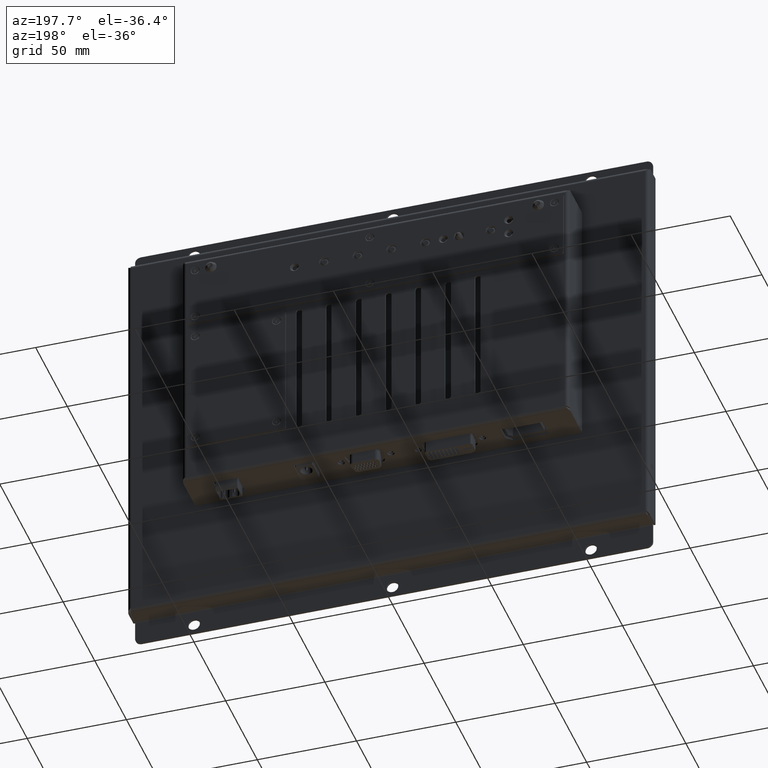
[diagram: clean part render]
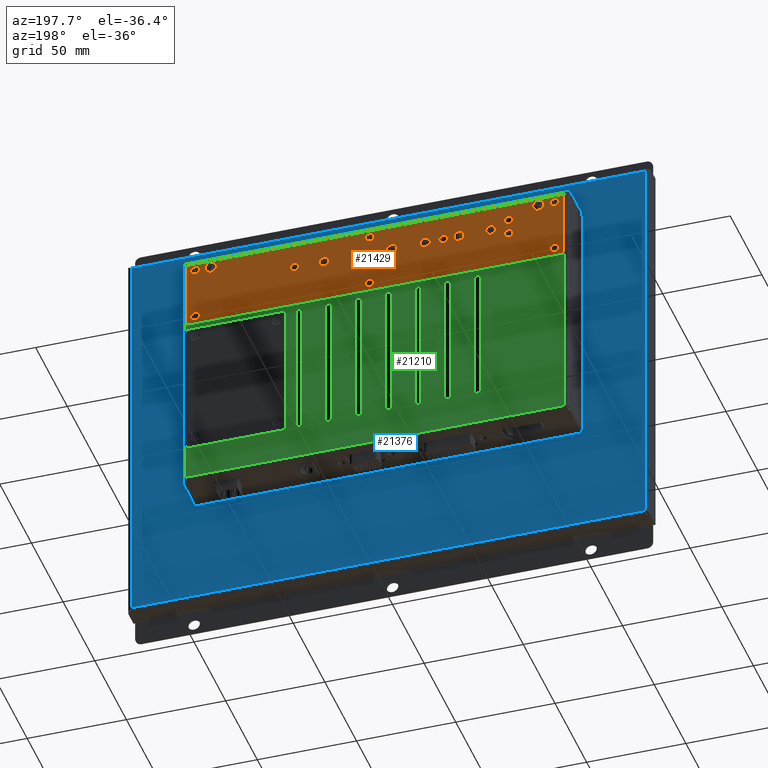
[diagram: same view with three faces highlighted in distinct colors, each labeled with its STEP entity id]
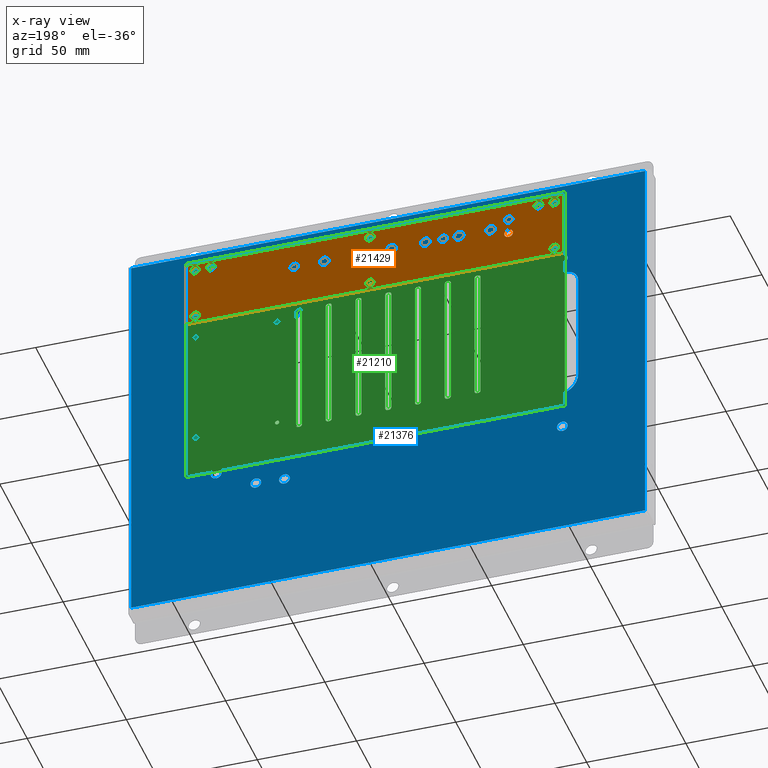
[diagram: x-ray of the same camera — body ghosted, the three highlighted faces saturated]
A machine part, auxiliary view with three faces highlighted in distinct colors.
The next image is the same camera in x-ray (body ghosted, the three faces saturated) — at least one of them is partly hidden behind the body in this view.
Their STEP definitions:

[orange] entity #21429 — the highlighted planar face has unit normal (-0, 1, -0).
#1054=FACE_BOUND('',#7914,.T.);
#1055=FACE_BOUND('',#7915,.T.);
#1056=FACE_BOUND('',#7916,.T.);
#1057=FACE_BOUND('',#7917,.T.);
#1058=FACE_BOUND('',#7918,.T.);
#1059=FACE_BOUND('',#7919,.T.);
#1060=FACE_BOUND('',#7920,.T.);
#1061=FACE_BOUND('',#7921,.T.);
#1062=FACE_BOUND('',#7922,.T.);
#1063=FACE_BOUND('',#7923,.T.);
#1064=FACE_BOUND('',#7924,.T.);
#1065=FACE_BOUND('',#7925,.T.);
#1066=FACE_BOUND('',#7926,.T.);
#1067=FACE_BOUND('',#7927,.T.);
#1068=FACE_BOUND('',#7928,.T.);
#1069=FACE_BOUND('',#7929,.T.);
#1070=FACE_BOUND('',#7930,.T.);
#1071=FACE_BOUND('',#7931,.T.);
#1648=PLANE('',#23647);
#3319=LINE('',#38420,#5074);
#3323=LINE('',#38432,#5078);
#3327=LINE('',#38444,#5082);
#3331=LINE('',#38455,#5086);
#5074=VECTOR('',#28872,10.);
#5078=VECTOR('',#28884,10.);
#5082=VECTOR('',#28896,10.);
#5086=VECTOR('',#28908,10.);
#6509=FACE_OUTER_BOUND('',#7913,.T.);
#7913=EDGE_LOOP('',(#19227,#19228,#19229,#19230,#19231,#19232,#19233,#19234));
#7914=EDGE_LOOP('',(#19235,#19236));
#7915=EDGE_LOOP('',(#19237,#19238));
#7916=EDGE_LOOP('',(#19239,#19240));
#7917=EDGE_LOOP('',(#19241,#19242));
#7918=EDGE_LOOP('',(#19243,#19244));
#7919=EDGE_LOOP('',(#19245,#19246));
#7920=EDGE_LOOP('',(#19247,#19248));
#7921=EDGE_LOOP('',(#19249,#19250));
#7922=EDGE_LOOP('',(#19251,#19252));
#7923=EDGE_LOOP('',(#19253,#19254));
#7924=EDGE_LOOP('',(#19255));
#7925=EDGE_LOOP('',(#19256));
#7926=EDGE_LOOP('',(#19257));
#7927=EDGE_LOOP('',(#19258));
#7928=EDGE_LOOP('',(#19259));
#7929=EDGE_LOOP('',(#19260));
#7930=EDGE_LOOP('',(#19261));
#7931=EDGE_LOOP('',(#19262));
#8806=CIRCLE('',#23568,2.2);
#8807=CIRCLE('',#23569,2.2);
#8809=CIRCLE('',#23572,2.2);
#8810=CIRCLE('',#23573,2.2);
#8812=CIRCLE('',#23576,2.2);
#8813=CIRCLE('',#23577,2.2);
#8815=CIRCLE('',#23580,2.2);
#8816=CIRCLE('',#23581,2.2);
#8818=CIRCLE('',#23584,2.2);
#8819=CIRCLE('',#23585,2.2);
#8821=CIRCLE('',#23588,2.2);
#8822=CIRCLE('',#23589,2.2);
#8824=CIRCLE('',#23592,2.2);
#8825=CIRCLE('',#23593,2.2);
#8827=CIRCLE('',#23596,2.2);
#8828=CIRCLE('',#23597,2.2);
#8830=CIRCLE('',#23600,2.2);
#8831=CIRCLE('',#23601,2.2);
#8833=CIRCLE('',#23604,2.2);
#8834=CIRCLE('',#23605,2.2);
#8837=CIRCLE('',#23609,2.55);
#8839=CIRCLE('',#23612,2.5);
#8841=CIRCLE('',#23615,2.5);
#8843=CIRCLE('',#23618,2.5);
#8845=CIRCLE('',#23621,2.5);
#8847=CIRCLE('',#23624,2.5);
#8849=CIRCLE('',#23627,2.2);
#8851=CIRCLE('',#23630,2.2);
#8852=CIRCLE('',#23632,0.999999252925102);
#8854=CIRCLE('',#23636,0.999999252925095);
#8856=CIRCLE('',#23640,0.999999252925102);
#8858=CIRCLE('',#23644,0.999999252925095);
#10702=VERTEX_POINT('',#38282);
#10703=VERTEX_POINT('',#38283);
#10705=VERTEX_POINT('',#38290);
#10706=VERTEX_POINT('',#38291);
#10708=VERTEX_POINT('',#38298);
#10709=VERTEX_POINT('',#38299);
#10711=VERTEX_POINT('',#38306);
#10712=VERTEX_POINT('',#38307);
#10714=VERTEX_POINT('',#38314);
#10715=VERTEX_POINT('',#38315);
#10717=VERTEX_POINT('',#38322);
#10718=VERTEX_POINT('',#38323);
#10720=VERTEX_POINT('',#38330);
#10721=VERTEX_POINT('',#38331);
#10723=VERTEX_POINT('',#38338);
#10724=VERTEX_POINT('',#38339);
#10726=VERTEX_POINT('',#38346);
#10727=VERTEX_POINT('',#38347);
#10729=VERTEX_POINT('',#38354);
#10730=VERTEX_POINT('',#38355);
#10733=VERTEX_POINT('',#38364);
#10735=VERTEX_POINT('',#38370);
#10737=VERTEX_POINT('',#38376);
#10739=VERTEX_POINT('',#38382);
#10741=VERTEX_POINT('',#38388);
#10743=VERTEX_POINT('',#38394);
#10745=VERTEX_POINT('',#38400);
#10747=VERTEX_POINT('',#38406);
#10748=VERTEX_POINT('',#38410);
#10749=VERTEX_POINT('',#38411);
#10752=VERTEX_POINT('',#38419);
#10754=VERTEX_POINT('',#38425);
#10756=VERTEX_POINT('',#38431);
#10758=VERTEX_POINT('',#38437);
#10760=VERTEX_POINT('',#38443);
#10762=VERTEX_POINT('',#38449);
#13553=EDGE_CURVE('',#10702,#10703,#8806,.T.);
#13554=EDGE_CURVE('',#10703,#10702,#8807,.T.);
#13557=EDGE_CURVE('',#10705,#10706,#8809,.T.);
#13558=EDGE_CURVE('',#10706,#10705,#8810,.T.);
#13561=EDGE_CURVE('',#10708,#10709,#8812,.T.);
#13562=EDGE_CURVE('',#10709,#10708,#8813,.T.);
#13565=EDGE_CURVE('',#10711,#10712,#8815,.T.);
#13566=EDGE_CURVE('',#10712,#10711,#8816,.T.);
#13569=EDGE_CURVE('',#10714,#10715,#8818,.T.);
#13570=EDGE_CURVE('',#10715,#10714,#8819,.T.);
#13573=EDGE_CURVE('',#10717,#10718,#8821,.T.);
#13574=EDGE_CURVE('',#10718,#10717,#8822,.T.);
#13577=EDGE_CURVE('',#10720,#10721,#8824,.T.);
#13578=EDGE_CURVE('',#10721,#10720,#8825,.T.);
#13581=EDGE_CURVE('',#10723,#10724,#8827,.T.);
#13582=EDGE_CURVE('',#10724,#10723,#8828,.T.);
#13585=EDGE_CURVE('',#10726,#10727,#8830,.T.);
#13586=EDGE_CURVE('',#10727,#10726,#8831,.T.);
#13589=EDGE_CURVE('',#10729,#10730,#8833,.T.);
#13590=EDGE_CURVE('',#10730,#10729,#8834,.T.);
#13595=EDGE_CURVE('',#10733,#10733,#8837,.T.);
#13598=EDGE_CURVE('',#10735,#10735,#8839,.T.);
#13601=EDGE_CURVE('',#10737,#10737,#8841,.T.);
#13604=EDGE_CURVE('',#10739,#10739,#8843,.T.);
#13607=EDGE_CURVE('',#10741,#10741,#8845,.T.);
#13610=EDGE_CURVE('',#10743,#10743,#8847,.T.);
#13613=EDGE_CURVE('',#10745,#10745,#8849,.T.);
#13616=EDGE_CURVE('',#10747,#10747,#8851,.T.);
#13617=EDGE_CURVE('',#10748,#10749,#8852,.T.);
#13621=EDGE_CURVE('',#10749,#10752,#3319,.T.);
#13624=EDGE_CURVE('',#10752,#10754,#8854,.T.);
#13627=EDGE_CURVE('',#10754,#10756,#3323,.T.);
#13630=EDGE_CURVE('',#10756,#10758,#8856,.T.);
#13633=EDGE_CURVE('',#10758,#10760,#3327,.T.);
#13636=EDGE_CURVE('',#10760,#10762,#8858,.T.);
#13639=EDGE_CURVE('',#10762,#10748,#3331,.T.);
#19227=ORIENTED_EDGE('',*,*,#13617,.F.);
#19228=ORIENTED_EDGE('',*,*,#13639,.F.);
#19229=ORIENTED_EDGE('',*,*,#13636,.F.);
#19230=ORIENTED_EDGE('',*,*,#13633,.F.);
#19231=ORIENTED_EDGE('',*,*,#13630,.F.);
#19232=ORIENTED_EDGE('',*,*,#13627,.F.);
#19233=ORIENTED_EDGE('',*,*,#13624,.F.);
#19234=ORIENTED_EDGE('',*,*,#13621,.F.);
#19235=ORIENTED_EDGE('',*,*,#13553,.T.);
#19236=ORIENTED_EDGE('',*,*,#13554,.T.);
#19237=ORIENTED_EDGE('',*,*,#13557,.T.);
#19238=ORIENTED_EDGE('',*,*,#13558,.T.);
#19239=ORIENTED_EDGE('',*,*,#13561,.T.);
#19240=ORIENTED_EDGE('',*,*,#13562,.T.);
#19241=ORIENTED_EDGE('',*,*,#13565,.T.);
#19242=ORIENTED_EDGE('',*,*,#13566,.T.);
#19243=ORIENTED_EDGE('',*,*,#13569,.T.);
#19244=ORIENTED_EDGE('',*,*,#13570,.T.);
#19245=ORIENTED_EDGE('',*,*,#13573,.T.);
#19246=ORIENTED_EDGE('',*,*,#13574,.T.);
#19247=ORIENTED_EDGE('',*,*,#13577,.T.);
#19248=ORIENTED_EDGE('',*,*,#13578,.T.);
#19249=ORIENTED_EDGE('',*,*,#13581,.T.);
#19250=ORIENTED_EDGE('',*,*,#13582,.T.);
#19251=ORIENTED_EDGE('',*,*,#13585,.T.);
#19252=ORIENTED_EDGE('',*,*,#13586,.T.);
#19253=ORIENTED_EDGE('',*,*,#13589,.T.);
#19254=ORIENTED_EDGE('',*,*,#13590,.T.);
#19255=ORIENTED_EDGE('',*,*,#13595,.T.);
#19256=ORIENTED_EDGE('',*,*,#13598,.T.);
#19257=ORIENTED_EDGE('',*,*,#13601,.T.);
#19258=ORIENTED_EDGE('',*,*,#13604,.T.);
#19259=ORIENTED_EDGE('',*,*,#13607,.T.);
#19260=ORIENTED_EDGE('',*,*,#13610,.T.);
#19261=ORIENTED_EDGE('',*,*,#13613,.T.);
#19262=ORIENTED_EDGE('',*,*,#13616,.T.);
#21429=ADVANCED_FACE('',(#6509,#1054,#1055,#1056,#1057,#1058,#1059,#1060,
#1061,#1062,#1063,#1064,#1065,#1066,#1067,#1068,#1069,#1070,#1071),#1648,
 .T.);
#23568=AXIS2_PLACEMENT_3D('',#38284,#28718,#28719);
#23569=AXIS2_PLACEMENT_3D('',#38285,#28720,#28721);
#23572=AXIS2_PLACEMENT_3D('',#38292,#28727,#28728);
#23573=AXIS2_PLACEMENT_3D('',#38293,#28729,#28730);
#23576=AXIS2_PLACEMENT_3D('',#38300,#28736,#28737);
#23577=AXIS2_PLACEMENT_3D('',#38301,#28738,#28739);
#23580=AXIS2_PLACEMENT_3D('',#38308,#28745,#28746);
#23581=AXIS2_PLACEMENT_3D('',#38309,#28747,#28748);
#23584=AXIS2_PLACEMENT_3D('',#38316,#28754,#28755);
#23585=AXIS2_PLACEMENT_3D('',#38317,#28756,#28757);
#23588=AXIS2_PLACEMENT_3D('',#38324,#28763,#28764);
#23589=AXIS2_PLACEMENT_3D('',#38325,#28765,#28766);
#23592=AXIS2_PLACEMENT_3D('',#38332,#28772,#28773);
#23593=AXIS2_PLACEMENT_3D('',#38333,#28774,#28775);
#23596=AXIS2_PLACEMENT_3D('',#38340,#28781,#28782);
#23597=AXIS2_PLACEMENT_3D('',#38341,#28783,#28784);
#23600=AXIS2_PLACEMENT_3D('',#38348,#28790,#28791);
#23601=AXIS2_PLACEMENT_3D('',#38349,#28792,#28793);
#23604=AXIS2_PLACEMENT_3D('',#38356,#28799,#28800);
#23605=AXIS2_PLACEMENT_3D('',#38357,#28801,#28802);
#23609=AXIS2_PLACEMENT_3D('',#38366,#28811,#28812);
#23612=AXIS2_PLACEMENT_3D('',#38372,#28818,#28819);
#23615=AXIS2_PLACEMENT_3D('',#38378,#28825,#28826);
#23618=AXIS2_PLACEMENT_3D('',#38384,#28832,#28833);
#23621=AXIS2_PLACEMENT_3D('',#38390,#28839,#28840);
#23624=AXIS2_PLACEMENT_3D('',#38396,#28846,#28847);
#23627=AXIS2_PLACEMENT_3D('',#38402,#28853,#28854);
#23630=AXIS2_PLACEMENT_3D('',#38408,#28860,#28861);
#23632=AXIS2_PLACEMENT_3D('',#38412,#28864,#28865);
#23636=AXIS2_PLACEMENT_3D('',#38426,#28877,#28878);
#23640=AXIS2_PLACEMENT_3D('',#38438,#28889,#28890);
#23644=AXIS2_PLACEMENT_3D('',#38450,#28901,#28902);
#23647=AXIS2_PLACEMENT_3D('',#38457,#28910,#28911);
#28718=DIRECTION('center_axis',(0.,0.,-1.));
#28719=DIRECTION('ref_axis',(1.,0.,0.));
#28720=DIRECTION('center_axis',(0.,0.,-1.));
#28721=DIRECTION('ref_axis',(1.,0.,0.));
#28727=DIRECTION('center_axis',(0.,0.,-1.));
#28728=DIRECTION('ref_axis',(1.,0.,0.));
#28729=DIRECTION('center_axis',(0.,0.,-1.));
#28730=DIRECTION('ref_axis',(1.,0.,0.));
#28736=DIRECTION('center_axis',(0.,0.,-1.));
#28737=DIRECTION('ref_axis',(1.,0.,0.));
#28738=DIRECTION('center_axis',(0.,0.,-1.));
#28739=DIRECTION('ref_axis',(1.,0.,0.));
#28745=DIRECTION('center_axis',(0.,0.,-1.));
#28746=DIRECTION('ref_axis',(1.,0.,0.));
#28747=DIRECTION('center_axis',(0.,0.,-1.));
#28748=DIRECTION('ref_axis',(1.,0.,0.));
#28754=DIRECTION('center_axis',(0.,0.,-1.));
#28755=DIRECTION('ref_axis',(1.,0.,0.));
#28756=DIRECTION('center_axis',(0.,0.,-1.));
#28757=DIRECTION('ref_axis',(1.,0.,0.));
#28763=DIRECTION('center_axis',(0.,0.,-1.));
#28764=DIRECTION('ref_axis',(1.,0.,0.));
#28765=DIRECTION('center_axis',(0.,0.,-1.));
#28766=DIRECTION('ref_axis',(1.,0.,0.));
#28772=DIRECTION('center_axis',(0.,0.,-1.));
#28773=DIRECTION('ref_axis',(1.,0.,0.));
#28774=DIRECTION('center_axis',(0.,0.,-1.));
#28775=DIRECTION('ref_axis',(1.,0.,0.));
#28781=DIRECTION('center_axis',(0.,0.,-1.));
#28782=DIRECTION('ref_axis',(1.,0.,0.));
#28783=DIRECTION('center_axis',(0.,0.,-1.));
#28784=DIRECTION('ref_axis',(1.,0.,0.));
#28790=DIRECTION('center_axis',(0.,0.,-1.));
#28791=DIRECTION('ref_axis',(1.,0.,0.));
#28792=DIRECTION('center_axis',(0.,0.,-1.));
#28793=DIRECTION('ref_axis',(1.,0.,0.));
#28799=DIRECTION('center_axis',(0.,0.,-1.));
#28800=DIRECTION('ref_axis',(1.,0.,0.));
#28801=DIRECTION('center_axis',(0.,0.,-1.));
#28802=DIRECTION('ref_axis',(1.,0.,0.));
#28811=DIRECTION('center_axis',(0.,0.,-1.));
#28812=DIRECTION('ref_axis',(-1.,0.,0.));
#28818=DIRECTION('center_axis',(0.,0.,-1.));
#28819=DIRECTION('ref_axis',(-1.,0.,0.));
#28825=DIRECTION('center_axis',(0.,0.,-1.));
#28826=DIRECTION('ref_axis',(-1.,0.,0.));
#28832=DIRECTION('center_axis',(0.,0.,-1.));
#28833=DIRECTION('ref_axis',(-1.,0.,0.));
#28839=DIRECTION('center_axis',(0.,0.,-1.));
#28840=DIRECTION('ref_axis',(-1.,0.,0.));
#28846=DIRECTION('center_axis',(0.,0.,-1.));
#28847=DIRECTION('ref_axis',(-1.,0.,0.));
#28853=DIRECTION('center_axis',(0.,0.,-1.));
#28854=DIRECTION('ref_axis',(-1.,0.,0.));
#28860=DIRECTION('center_axis',(0.,0.,-1.));
#28861=DIRECTION('ref_axis',(-1.,0.,0.));
#28864=DIRECTION('center_axis',(0.,0.,-1.));
#28865=DIRECTION('ref_axis',(-7.47075742059329E-7,-0.999999999999721,0.));
#28872=DIRECTION('',(1.,-4.72435329627726E-17,0.));
#28877=DIRECTION('center_axis',(0.,0.,-1.));
#28878=DIRECTION('ref_axis',(-0.999999999999721,7.4707574205935E-7,0.));
#28884=DIRECTION('',(5.38289951333409E-16,-1.,0.));
#28889=DIRECTION('center_axis',(0.,0.,-1.));
#28890=DIRECTION('ref_axis',(7.47075742059329E-7,0.999999999999721,0.));
#28896=DIRECTION('',(-1.,4.72435329627726E-17,0.));
#28901=DIRECTION('center_axis',(0.,0.,-1.));
#28902=DIRECTION('ref_axis',(0.999999999999721,-7.47075742059337E-7,0.));
#28908=DIRECTION('',(0.,1.,0.));
#28910=DIRECTION('center_axis',(0.,0.,1.));
#28911=DIRECTION('ref_axis',(1.,0.,0.));
#38282=CARTESIAN_POINT('',(92.7,13.64,1.));
#38283=CARTESIAN_POINT('',(88.3,13.64,1.00000000000001));
#38284=CARTESIAN_POINT('Origin',(90.5,13.64,1.));
#38285=CARTESIAN_POINT('Origin',(90.5,13.64,1.));
#38290=CARTESIAN_POINT('',(-0.3,13.64,1.));
#38291=CARTESIAN_POINT('',(-4.7,13.64,1.));
#38292=CARTESIAN_POINT('Origin',(-2.5,13.64,1.));
#38293=CARTESIAN_POINT('Origin',(-2.5,13.64,1.));
#38298=CARTESIAN_POINT('',(-88.3,13.64,1.));
#38299=CARTESIAN_POINT('',(-92.7,13.64,1.00000000000001));
#38300=CARTESIAN_POINT('Origin',(-90.5,13.64,1.));
#38301=CARTESIAN_POINT('Origin',(-90.5,13.64,1.));
#38306=CARTESIAN_POINT('',(69.7,0.36,1.));
#38307=CARTESIAN_POINT('',(65.3,0.36,1.));
#38308=CARTESIAN_POINT('Origin',(67.5,0.36,1.));
#38309=CARTESIAN_POINT('Origin',(67.5,0.36,1.));
#38314=CARTESIAN_POINT('',(-38.3,4.36,1.));
#38315=CARTESIAN_POINT('',(-42.7,4.36,1.));
#38316=CARTESIAN_POINT('Origin',(-40.5,4.36,1.));
#38317=CARTESIAN_POINT('Origin',(-40.5,4.36,1.));
#38322=CARTESIAN_POINT('',(36.7,4.36,1.));
#38323=CARTESIAN_POINT('',(32.3,4.36,1.));
#38324=CARTESIAN_POINT('Origin',(34.5,4.36,1.));
#38325=CARTESIAN_POINT('Origin',(34.5,4.36,1.));
#38330=CARTESIAN_POINT('',(69.7,8.36,1.));
#38331=CARTESIAN_POINT('',(65.3,8.36,1.));
#38332=CARTESIAN_POINT('Origin',(67.5,8.36,1.));
#38333=CARTESIAN_POINT('Origin',(67.5,8.36,1.));
#38338=CARTESIAN_POINT('',(-88.3,-13.64,1.));
#38339=CARTESIAN_POINT('',(-92.7,-13.64,1.00000000000001));
#38340=CARTESIAN_POINT('Origin',(-90.5,-13.64,1.));
#38341=CARTESIAN_POINT('Origin',(-90.5,-13.64,1.));
#38346=CARTESIAN_POINT('',(-0.3,-13.64,1.));
#38347=CARTESIAN_POINT('',(-4.7,-13.64,1.));
#38348=CARTESIAN_POINT('Origin',(-2.5,-13.64,1.));
#38349=CARTESIAN_POINT('Origin',(-2.5,-13.64,1.));
#38354=CARTESIAN_POINT('',(92.7,-13.64,1.));
#38355=CARTESIAN_POINT('',(88.3,-13.64,1.00000000000001));
#38356=CARTESIAN_POINT('Origin',(90.5,-13.64,1.));
#38357=CARTESIAN_POINT('Origin',(90.5,-13.64,1.));
#38364=CARTESIAN_POINT('',(45.05,4.36,1.));
#38366=CARTESIAN_POINT('Origin',(42.5,4.36,1.));
#38370=CARTESIAN_POINT('',(61.,4.36,1.));
#38372=CARTESIAN_POINT('Origin',(58.5,4.36,1.));
#38376=CARTESIAN_POINT('',(11.,4.36,1.));
#38378=CARTESIAN_POINT('Origin',(8.5,4.36,1.));
#38382=CARTESIAN_POINT('',(-6.,4.36,1.));
#38384=CARTESIAN_POINT('Origin',(-8.5,4.36,1.));
#38388=CARTESIAN_POINT('',(28.,4.36,1.));
#38390=CARTESIAN_POINT('Origin',(25.5,4.36,1.));
#38394=CARTESIAN_POINT('',(-23.,4.36,1.));
#38396=CARTESIAN_POINT('Origin',(-25.5,4.36,1.));
#38400=CARTESIAN_POINT('',(84.70453,13.641676,1.));
#38402=CARTESIAN_POINT('Origin',(82.50453,13.641676,1.));
#38406=CARTESIAN_POINT('',(-80.29547,13.641676,1.));
#38408=CARTESIAN_POINT('Origin',(-82.49547,13.641676,1.));
#38410=CARTESIAN_POINT('',(-95.,16.5,1.));
#38411=CARTESIAN_POINT('',(-94.,17.5,1.));
#38412=CARTESIAN_POINT('Origin',(-94.0000007470752,16.5000007470752,1.));
#38419=CARTESIAN_POINT('',(94.,17.5,1.));
#38420=CARTESIAN_POINT('',(-94.,17.5,1.));
#38425=CARTESIAN_POINT('',(95.,16.5,1.));
#38426=CARTESIAN_POINT('Origin',(94.0000007470752,16.5000007470752,1.));
#38431=CARTESIAN_POINT('',(95.,-16.5,1.));
#38432=CARTESIAN_POINT('',(95.,16.5,1.));
#38437=CARTESIAN_POINT('',(94.,-17.5,1.));
#38438=CARTESIAN_POINT('Origin',(94.0000007470752,-16.5000007470752,1.));
#38443=CARTESIAN_POINT('',(-94.,-17.5,1.));
#38444=CARTESIAN_POINT('',(94.,-17.5,1.));
#38449=CARTESIAN_POINT('',(-95.,-16.5,1.));
#38450=CARTESIAN_POINT('Origin',(-94.0000007470752,-16.5000007470752,1.));
#38455=CARTESIAN_POINT('',(-95.,-16.5,1.));
#38457=CARTESIAN_POINT('Origin',(-6.93889390390723E-17,3.46944695195361E-17,
1.));

[blue] entity #21376 — the highlighted planar face has unit normal (0, 1, -0).
#1028=FACE_BOUND('',#7835,.T.);
#1029=FACE_BOUND('',#7836,.T.);
#1030=FACE_BOUND('',#7837,.T.);
#1031=FACE_BOUND('',#7838,.T.);
#1032=FACE_BOUND('',#7839,.T.);
#1033=FACE_BOUND('',#7840,.T.);
#1034=FACE_BOUND('',#7841,.T.);
#1035=FACE_BOUND('',#7842,.T.);
#1036=FACE_BOUND('',#7843,.T.);
#1623=PLANE('',#23525);
#3125=LINE('',#37257,#4880);
#3129=LINE('',#37269,#4884);
#3133=LINE('',#37281,#4888);
#3137=LINE('',#37293,#4892);
#3141=LINE('',#37305,#4896);
#3145=LINE('',#37317,#4900);
#3149=LINE('',#37329,#4904);
#3154=LINE('',#37341,#4909);
#3226=LINE('',#37642,#4981);
#3241=LINE('',#37876,#4996);
#3255=LINE('',#38158,#5010);
#3256=LINE('',#38160,#5011);
#4880=VECTOR('',#28136,10.);
#4884=VECTOR('',#28148,10.);
#4888=VECTOR('',#28160,10.);
#4892=VECTOR('',#28172,10.);
#4896=VECTOR('',#28184,10.);
#4900=VECTOR('',#28196,10.);
#4904=VECTOR('',#28208,10.);
#4909=VECTOR('',#28221,10.);
#4981=VECTOR('',#28527,10.);
#4996=VECTOR('',#28556,10.);
#5010=VECTOR('',#28586,10.);
#5011=VECTOR('',#28589,10.);
#6456=FACE_OUTER_BOUND('',#7834,.T.);
#7834=EDGE_LOOP('',(#18925,#18926,#18927,#18928));
#7835=EDGE_LOOP('',(#18929,#18930,#18931,#18932,#18933,#18934,#18935,#18936,
#18937,#18938,#18939,#18940,#18941,#18942,#18943,#18944));
#7836=EDGE_LOOP('',(#18945,#18946));
#7837=EDGE_LOOP('',(#18947,#18948));
#7838=EDGE_LOOP('',(#18949,#18950));
#7839=EDGE_LOOP('',(#18951,#18952));
#7840=EDGE_LOOP('',(#18953,#18954));
#7841=EDGE_LOOP('',(#18955,#18956));
#7842=EDGE_LOOP('',(#18957,#18958));
#7843=EDGE_LOOP('',(#18959,#18960));
#8706=CIRCLE('',#23361,6.);
#8708=CIRCLE('',#23365,10.);
#8710=CIRCLE('',#23369,10.);
#8712=CIRCLE('',#23373,10.);
#8714=CIRCLE('',#23377,10.);
#8716=CIRCLE('',#23381,10.);
#8718=CIRCLE('',#23385,10.);
#8720=CIRCLE('',#23389,10.);
#8722=CIRCLE('',#23393,2.705);
#8723=CIRCLE('',#23394,2.705);
#8726=CIRCLE('',#23398,2.705);
#8727=CIRCLE('',#23399,2.705);
#8730=CIRCLE('',#23403,2.705);
#8731=CIRCLE('',#23404,2.705);
#8734=CIRCLE('',#23408,2.705);
#8735=CIRCLE('',#23409,2.705);
#8738=CIRCLE('',#23413,2.705);
#8739=CIRCLE('',#23414,2.705);
#8742=CIRCLE('',#23418,2.705);
#8743=CIRCLE('',#23419,2.705);
#8746=CIRCLE('',#23423,2.705);
#8747=CIRCLE('',#23424,2.705);
#8750=CIRCLE('',#23428,2.705);
#8751=CIRCLE('',#23429,2.705);
#10510=VERTEX_POINT('',#37247);
#10511=VERTEX_POINT('',#37248);
#10514=VERTEX_POINT('',#37256);
#10516=VERTEX_POINT('',#37262);
#10518=VERTEX_POINT('',#37268);
#10520=VERTEX_POINT('',#37274);
#10522=VERTEX_POINT('',#37280);
#10524=VERTEX_POINT('',#37286);
#10526=VERTEX_POINT('',#37292);
#10528=VERTEX_POINT('',#37298);
#10530=VERTEX_POINT('',#37304);
#10532=VERTEX_POINT('',#37310);
#10534=VERTEX_POINT('',#37316);
#10536=VERTEX_POINT('',#37322);
#10538=VERTEX_POINT('',#37328);
#10540=VERTEX_POINT('',#37334);
#10542=VERTEX_POINT('',#37343);
#10543=VERTEX_POINT('',#37344);
#10546=VERTEX_POINT('',#37353);
#10547=VERTEX_POINT('',#37354);
#10550=VERTEX_POINT('',#37363);
#10551=VERTEX_POINT('',#37364);
#10554=VERTEX_POINT('',#37373);
#10555=VERTEX_POINT('',#37374);
#10558=VERTEX_POINT('',#37383);
#10559=VERTEX_POINT('',#37384);
#10562=VERTEX_POINT('',#37393);
#10563=VERTEX_POINT('',#37394);
#10566=VERTEX_POINT('',#37403);
#10567=VERTEX_POINT('',#37404);
#10570=VERTEX_POINT('',#37413);
#10571=VERTEX_POINT('',#37414);
#10645=VERTEX_POINT('',#37633);
#10646=VERTEX_POINT('',#37641);
#10660=VERTEX_POINT('',#37858);
#10662=VERTEX_POINT('',#37868);
#13253=EDGE_CURVE('',#10510,#10511,#8706,.T.);
#13257=EDGE_CURVE('',#10514,#10511,#3125,.T.);
#13260=EDGE_CURVE('',#10516,#10514,#8708,.T.);
#13263=EDGE_CURVE('',#10518,#10516,#3129,.T.);
#13266=EDGE_CURVE('',#10520,#10518,#8710,.T.);
#13269=EDGE_CURVE('',#10522,#10520,#3133,.T.);
#13272=EDGE_CURVE('',#10524,#10522,#8712,.T.);
#13275=EDGE_CURVE('',#10526,#10524,#3137,.T.);
#13278=EDGE_CURVE('',#10528,#10526,#8714,.T.);
#13281=EDGE_CURVE('',#10530,#10528,#3141,.T.);
#13284=EDGE_CURVE('',#10532,#10530,#8716,.T.);
#13287=EDGE_CURVE('',#10534,#10532,#3145,.T.);
#13290=EDGE_CURVE('',#10536,#10534,#8718,.T.);
#13293=EDGE_CURVE('',#10538,#10536,#3149,.T.);
#13296=EDGE_CURVE('',#10540,#10538,#8720,.T.);
#13300=EDGE_CURVE('',#10510,#10540,#3154,.T.);
#13301=EDGE_CURVE('',#10542,#10543,#8722,.T.);
#13302=EDGE_CURVE('',#10543,#10542,#8723,.T.);
#13306=EDGE_CURVE('',#10546,#10547,#8726,.T.);
#13307=EDGE_CURVE('',#10547,#10546,#8727,.T.);
#13311=EDGE_CURVE('',#10550,#10551,#8730,.T.);
#13312=EDGE_CURVE('',#10551,#10550,#8731,.T.);
#13316=EDGE_CURVE('',#10554,#10555,#8734,.T.);
#13317=EDGE_CURVE('',#10555,#10554,#8735,.T.);
#13321=EDGE_CURVE('',#10558,#10559,#8738,.T.);
#13322=EDGE_CURVE('',#10559,#10558,#8739,.T.);
#13326=EDGE_CURVE('',#10562,#10563,#8742,.T.);
#13327=EDGE_CURVE('',#10563,#10562,#8743,.T.);
#13331=EDGE_CURVE('',#10566,#10567,#8746,.T.);
#13332=EDGE_CURVE('',#10567,#10566,#8747,.T.);
#13336=EDGE_CURVE('',#10570,#10571,#8750,.T.);
#13337=EDGE_CURVE('',#10571,#10570,#8751,.T.);
#13445=EDGE_CURVE('',#10646,#10645,#3226,.T.);
#13472=EDGE_CURVE('',#10660,#10662,#3241,.T.);
#13497=EDGE_CURVE('',#10645,#10660,#3255,.T.);
#13498=EDGE_CURVE('',#10662,#10646,#3256,.T.);
#18925=ORIENTED_EDGE('',*,*,#13497,.T.);
#18926=ORIENTED_EDGE('',*,*,#13472,.T.);
#18927=ORIENTED_EDGE('',*,*,#13498,.T.);
#18928=ORIENTED_EDGE('',*,*,#13445,.T.);
#18929=ORIENTED_EDGE('',*,*,#13257,.T.);
#18930=ORIENTED_EDGE('',*,*,#13253,.F.);
#18931=ORIENTED_EDGE('',*,*,#13300,.T.);
#18932=ORIENTED_EDGE('',*,*,#13296,.T.);
#18933=ORIENTED_EDGE('',*,*,#13293,.T.);
#18934=ORIENTED_EDGE('',*,*,#13290,.T.);
#18935=ORIENTED_EDGE('',*,*,#13287,.T.);
#18936=ORIENTED_EDGE('',*,*,#13284,.T.);
#18937=ORIENTED_EDGE('',*,*,#13281,.T.);
#18938=ORIENTED_EDGE('',*,*,#13278,.T.);
#18939=ORIENTED_EDGE('',*,*,#13275,.T.);
#18940=ORIENTED_EDGE('',*,*,#13272,.T.);
#18941=ORIENTED_EDGE('',*,*,#13269,.T.);
#18942=ORIENTED_EDGE('',*,*,#13266,.T.);
#18943=ORIENTED_EDGE('',*,*,#13263,.T.);
#18944=ORIENTED_EDGE('',*,*,#13260,.T.);
#18945=ORIENTED_EDGE('',*,*,#13301,.T.);
#18946=ORIENTED_EDGE('',*,*,#13302,.T.);
#18947=ORIENTED_EDGE('',*,*,#13306,.T.);
#18948=ORIENTED_EDGE('',*,*,#13307,.T.);
#18949=ORIENTED_EDGE('',*,*,#13311,.T.);
#18950=ORIENTED_EDGE('',*,*,#13312,.T.);
#18951=ORIENTED_EDGE('',*,*,#13316,.T.);
#18952=ORIENTED_EDGE('',*,*,#13317,.T.);
#18953=ORIENTED_EDGE('',*,*,#13321,.T.);
#18954=ORIENTED_EDGE('',*,*,#13322,.T.);
#18955=ORIENTED_EDGE('',*,*,#13326,.T.);
#18956=ORIENTED_EDGE('',*,*,#13327,.T.);
#18957=ORIENTED_EDGE('',*,*,#13331,.T.);
#18958=ORIENTED_EDGE('',*,*,#13332,.T.);
#18959=ORIENTED_EDGE('',*,*,#13336,.T.);
#18960=ORIENTED_EDGE('',*,*,#13337,.T.);
#21376=ADVANCED_FACE('',(#6456,#1028,#1029,#1030,#1031,#1032,#1033,#1034,
#1035,#1036),#1623,.T.);
#23361=AXIS2_PLACEMENT_3D('',#37249,#28128,#28129);
#23365=AXIS2_PLACEMENT_3D('',#37263,#28141,#28142);
#23369=AXIS2_PLACEMENT_3D('',#37275,#28153,#28154);
#23373=AXIS2_PLACEMENT_3D('',#37287,#28165,#28166);
#23377=AXIS2_PLACEMENT_3D('',#37299,#28177,#28178);
#23381=AXIS2_PLACEMENT_3D('',#37311,#28189,#28190);
#23385=AXIS2_PLACEMENT_3D('',#37323,#28201,#28202);
#23389=AXIS2_PLACEMENT_3D('',#37335,#28213,#28214);
#23393=AXIS2_PLACEMENT_3D('',#37345,#28224,#28225);
#23394=AXIS2_PLACEMENT_3D('',#37346,#28226,#28227);
#23398=AXIS2_PLACEMENT_3D('',#37355,#28235,#28236);
#23399=AXIS2_PLACEMENT_3D('',#37356,#28237,#28238);
#23403=AXIS2_PLACEMENT_3D('',#37365,#28246,#28247);
#23404=AXIS2_PLACEMENT_3D('',#37366,#28248,#28249);
#23408=AXIS2_PLACEMENT_3D('',#37375,#28257,#28258);
#23409=AXIS2_PLACEMENT_3D('',#37376,#28259,#28260);
#23413=AXIS2_PLACEMENT_3D('',#37385,#28268,#28269);
#23414=AXIS2_PLACEMENT_3D('',#37386,#28270,#28271);
#23418=AXIS2_PLACEMENT_3D('',#37395,#28279,#28280);
#23419=AXIS2_PLACEMENT_3D('',#37396,#28281,#28282);
#23423=AXIS2_PLACEMENT_3D('',#37405,#28290,#28291);
#23424=AXIS2_PLACEMENT_3D('',#37406,#28292,#28293);
#23428=AXIS2_PLACEMENT_3D('',#37415,#28301,#28302);
#23429=AXIS2_PLACEMENT_3D('',#37416,#28303,#28304);
#23525=AXIS2_PLACEMENT_3D('',#38161,#28590,#28591);
#28128=DIRECTION('center_axis',(0.,0.,1.));
#28129=DIRECTION('ref_axis',(0.707106781186549,0.707106781186546,0.));
#28136=DIRECTION('',(1.,0.,0.));
#28141=DIRECTION('center_axis',(0.,0.,1.));
#28142=DIRECTION('ref_axis',(-1.,2.39808173319034E-14,0.));
#28148=DIRECTION('',(-2.39422008788806E-14,-1.,0.));
#28153=DIRECTION('center_axis',(0.,0.,-1.));
#28154=DIRECTION('ref_axis',(-1.,2.39808173319034E-14,0.));
#28160=DIRECTION('',(1.,-2.38951554538619E-14,0.));
#28165=DIRECTION('center_axis',(0.,0.,-1.));
#28166=DIRECTION('ref_axis',(-2.39808173319034E-14,-1.,0.));
#28172=DIRECTION('',(2.2397542757656E-14,1.,0.));
#28177=DIRECTION('center_axis',(0.,0.,1.));
#28178=DIRECTION('ref_axis',(0.,-1.,0.));
#28184=DIRECTION('',(1.,2.81961403079401E-16,0.));
#28189=DIRECTION('center_axis',(0.,0.,-1.));
#28190=DIRECTION('ref_axis',(0.,-1.,0.));
#28196=DIRECTION('',(-6.80596490191672E-16,1.,0.));
#28201=DIRECTION('center_axis',(0.,0.,-1.));
#28202=DIRECTION('ref_axis',(1.,4.44089209850063E-16,0.));
#28208=DIRECTION('',(-1.,-1.5582077538599E-16,0.));
#28213=DIRECTION('center_axis',(0.,0.,-1.));
#28214=DIRECTION('ref_axis',(0.,1.,0.));
#28221=DIRECTION('',(0.,-1.,0.));
#28224=DIRECTION('center_axis',(0.,0.,-1.));
#28225=DIRECTION('ref_axis',(1.,0.,0.));
#28226=DIRECTION('center_axis',(0.,0.,-1.));
#28227=DIRECTION('ref_axis',(1.,0.,0.));
#28235=DIRECTION('center_axis',(0.,0.,-1.));
#28236=DIRECTION('ref_axis',(1.,0.,0.));
#28237=DIRECTION('center_axis',(0.,0.,-1.));
#28238=DIRECTION('ref_axis',(1.,0.,0.));
#28246=DIRECTION('center_axis',(0.,0.,-1.));
#28247=DIRECTION('ref_axis',(1.,0.,0.));
#28248=DIRECTION('center_axis',(0.,0.,-1.));
#28249=DIRECTION('ref_axis',(1.,0.,0.));
#28257=DIRECTION('center_axis',(0.,0.,-1.));
#28258=DIRECTION('ref_axis',(1.,0.,0.));
#28259=DIRECTION('center_axis',(0.,0.,-1.));
#28260=DIRECTION('ref_axis',(1.,0.,0.));
#28268=DIRECTION('center_axis',(0.,0.,-1.));
#28269=DIRECTION('ref_axis',(1.,0.,0.));
#28270=DIRECTION('center_axis',(0.,0.,-1.));
#28271=DIRECTION('ref_axis',(1.,0.,0.));
#28279=DIRECTION('center_axis',(0.,0.,-1.));
#28280=DIRECTION('ref_axis',(1.,0.,0.));
#28281=DIRECTION('center_axis',(0.,0.,-1.));
#28282=DIRECTION('ref_axis',(1.,0.,0.));
#28290=DIRECTION('center_axis',(0.,0.,-1.));
#28291=DIRECTION('ref_axis',(1.,0.,0.));
#28292=DIRECTION('center_axis',(0.,0.,-1.));
#28293=DIRECTION('ref_axis',(1.,0.,0.));
#28301=DIRECTION('center_axis',(0.,0.,-1.));
#28302=DIRECTION('ref_axis',(1.,0.,0.));
#28303=DIRECTION('center_axis',(0.,0.,-1.));
#28304=DIRECTION('ref_axis',(1.,0.,0.));
#28527=DIRECTION('',(0.,1.,0.));
#28556=DIRECTION('',(1.73726830259193E-16,-1.,0.));
#28586=DIRECTION('',(-1.,-1.371704123089E-16,0.));
#28589=DIRECTION('',(1.,2.74340824617799E-16,0.));
#28590=DIRECTION('center_axis',(0.,0.,1.));
#28591=DIRECTION('ref_axis',(1.,0.,0.));
#37247=CARTESIAN_POINT('',(95.7500000000007,42.2500000000019,1.));
#37248=CARTESIAN_POINT('',(89.7500000000007,48.2500000000019,1.));
#37249=CARTESIAN_POINT('Origin',(89.7500000000007,42.2500000000019,1.));
#37256=CARTESIAN_POINT('',(84.7500000000022,48.2500000000019,1.));
#37257=CARTESIAN_POINT('',(42.3165325576104,48.2500000000019,1.));
#37262=CARTESIAN_POINT('',(74.7500000000022,58.2500000000022,1.));
#37263=CARTESIAN_POINT('Origin',(84.7500000000022,58.2500000000019,1.));
#37268=CARTESIAN_POINT('',(74.7500000000025,69.7499999999985,1.));
#37269=CARTESIAN_POINT('',(74.7500000000016,34.1249999999984,1.));
#37274=CARTESIAN_POINT('',(64.7500000000027,79.7499999999987,1.));
#37275=CARTESIAN_POINT('Origin',(64.7500000000025,69.7499999999987,1.));
#37280=CARTESIAN_POINT('',(-33.7499999999945,79.7500000000011,1.));
#37281=CARTESIAN_POINT('',(-16.933467442387,79.7500000000007,1.));
#37286=CARTESIAN_POINT('',(-43.7499999999947,69.7500000000014,1.));
#37287=CARTESIAN_POINT('Origin',(-33.7499999999947,69.7500000000011,1.));
#37292=CARTESIAN_POINT('',(-43.749999999995,58.2500000000017,1.));
#37293=CARTESIAN_POINT('',(-43.7499999999956,28.3750000000013,1.));
#37298=CARTESIAN_POINT('',(-53.749999999995,48.250000000002,1.));
#37299=CARTESIAN_POINT('Origin',(-53.749999999995,58.2500000000019,1.));
#37304=CARTESIAN_POINT('',(-85.2499999999954,48.2500000000019,1.));
#37305=CARTESIAN_POINT('',(-42.6834674423884,48.250000000002,1.));
#37310=CARTESIAN_POINT('',(-95.2499999999954,38.2500000000019,1.));
#37311=CARTESIAN_POINT('Origin',(-85.2499999999954,38.2500000000019,1.));
#37316=CARTESIAN_POINT('',(-95.2499999999954,-13.9499999999977,1.));
#37317=CARTESIAN_POINT('',(-95.2499999999954,-7.72499999999887,1.));
#37322=CARTESIAN_POINT('',(-85.2499999999954,-23.9499999999977,1.));
#37323=CARTESIAN_POINT('Origin',(-85.2499999999954,-13.9499999999977,1.));
#37328=CARTESIAN_POINT('',(85.7500000000007,-23.9499999999976,1.));
#37329=CARTESIAN_POINT('',(42.8165325576096,-23.9499999999977,1.));
#37334=CARTESIAN_POINT('',(95.7500000000007,-13.9499999999976,1.));
#37335=CARTESIAN_POINT('Origin',(85.7500000000007,-13.9499999999976,1.));
#37341=CARTESIAN_POINT('',(95.7500000000007,23.375000000001,1.));
#37343=CARTESIAN_POINT('',(90.4550000000026,56.7499999999986,1.));
#37344=CARTESIAN_POINT('',(85.0450000000026,56.7499999999986,1.));
#37345=CARTESIAN_POINT('Origin',(87.7500000000026,56.7499999999986,1.));
#37346=CARTESIAN_POINT('Origin',(87.7500000000026,56.7499999999986,1.));
#37353=CARTESIAN_POINT('',(-79.5449999999944,74.2500000000024,1.));
#37354=CARTESIAN_POINT('',(-84.9549999999944,74.2500000000024,1.));
#37355=CARTESIAN_POINT('Origin',(-82.2499999999944,74.2500000000024,1.));
#37356=CARTESIAN_POINT('Origin',(-82.2499999999944,74.2500000000024,1.));
#37363=CARTESIAN_POINT('',(-63.9850000000003,-42.4499999999975,1.));
#37364=CARTESIAN_POINT('',(-69.3950000000003,-42.4499999999975,1.));
#37365=CARTESIAN_POINT('Origin',(-66.6900000000003,-42.4499999999975,1.));
#37366=CARTESIAN_POINT('Origin',(-66.6900000000003,-42.4499999999975,1.));
#37373=CARTESIAN_POINT('',(90.4550000000006,-43.2499999999996,1.));
#37374=CARTESIAN_POINT('',(85.0450000000006,-43.2499999999996,1.));
#37375=CARTESIAN_POINT('Origin',(87.7500000000006,-43.2499999999996,1.));
#37376=CARTESIAN_POINT('Origin',(87.7500000000006,-43.2499999999996,1.));
#37383=CARTESIAN_POINT('',(-49.5449999999971,-43.2499999999962,1.));
#37384=CARTESIAN_POINT('',(-54.9549999999971,-43.2499999999962,1.));
#37385=CARTESIAN_POINT('Origin',(-52.2499999999971,-43.2499999999962,1.));
#37386=CARTESIAN_POINT('Origin',(-52.2499999999971,-43.2499999999962,1.));
#37393=CARTESIAN_POINT('',(-83.985,-32.4499999999976,1.));
#37394=CARTESIAN_POINT('',(-89.395,-32.4499999999976,1.));
#37395=CARTESIAN_POINT('Origin',(-86.69,-32.4499999999976,1.));
#37396=CARTESIAN_POINT('Origin',(-86.69,-32.4499999999976,1.));
#37403=CARTESIAN_POINT('',(-49.544999999995,56.7500000000019,1.));
#37404=CARTESIAN_POINT('',(-54.954999999995,56.7500000000019,1.));
#37405=CARTESIAN_POINT('Origin',(-52.249999999995,56.7500000000019,1.));
#37406=CARTESIAN_POINT('Origin',(-52.249999999995,56.7500000000019,1.));
#37413=CARTESIAN_POINT('',(85.4550000000026,74.2499999999985,1.));
#37414=CARTESIAN_POINT('',(80.0450000000026,74.2499999999985,1.));
#37415=CARTESIAN_POINT('Origin',(82.7500000000026,74.2499999999985,1.));
#37416=CARTESIAN_POINT('Origin',(82.7500000000026,74.2499999999985,1.));
#37633=CARTESIAN_POINT('',(129.5,99.75,1.));
#37641=CARTESIAN_POINT('',(129.5,-102.75,1.));
#37642=CARTESIAN_POINT('',(129.5,-52.625,1.));
#37858=CARTESIAN_POINT('',(-129.5,99.75,1.));
#37868=CARTESIAN_POINT('',(-129.5,-102.75,1.));
#37876=CARTESIAN_POINT('',(-129.5,49.625,1.));
#38158=CARTESIAN_POINT('',(64.6915325576093,99.75,1.));
#38160=CARTESIAN_POINT('',(-64.8084674423907,-102.75,1.));
#38161=CARTESIAN_POINT('Origin',(-0.116934884781426,-1.5,1.));

[green] entity #21210 — the highlighted planar face has unit normal (-0, 1, -0).
#990=FACE_BOUND('',#7631,.T.);
#991=FACE_BOUND('',#7632,.T.);
#992=FACE_BOUND('',#7633,.T.);
#993=FACE_BOUND('',#7634,.T.);
#994=FACE_BOUND('',#7635,.T.);
#995=FACE_BOUND('',#7636,.T.);
#996=FACE_BOUND('',#7637,.T.);
#997=FACE_BOUND('',#7638,.T.);
#998=FACE_BOUND('',#7639,.T.);
#999=FACE_BOUND('',#7640,.T.);
#1000=FACE_BOUND('',#7641,.T.);
#1001=FACE_BOUND('',#7642,.T.);
#1002=FACE_BOUND('',#7643,.T.);
#1003=FACE_BOUND('',#7644,.T.);
#1004=FACE_BOUND('',#7645,.T.);
#1005=FACE_BOUND('',#7646,.T.);
#1006=FACE_BOUND('',#7647,.T.);
#1007=FACE_BOUND('',#7648,.T.);
#1008=FACE_BOUND('',#7649,.T.);
#1009=FACE_BOUND('',#7650,.T.);
#1549=PLANE('',#23232);
#2963=LINE('',#36263,#4718);
#2975=LINE('',#36603,#4730);
#2982=LINE('',#36784,#4737);
#2984=LINE('',#36787,#4739);
#3017=LINE('',#36935,#4772);
#3018=LINE('',#36939,#4773);
#3019=LINE('',#36943,#4774);
#3020=LINE('',#36946,#4775);
#3021=LINE('',#36951,#4776);
#3022=LINE('',#36955,#4777);
#3023=LINE('',#36959,#4778);
#3024=LINE('',#36962,#4779);
#3025=LINE('',#36967,#4780);
#3026=LINE('',#36971,#4781);
#3027=LINE('',#36975,#4782);
#3028=LINE('',#36978,#4783);
#3029=LINE('',#36983,#4784);
#3030=LINE('',#36987,#4785);
#3031=LINE('',#36991,#4786);
#3032=LINE('',#36994,#4787);
#3033=LINE('',#36999,#4788);
#3034=LINE('',#37003,#4789);
#3035=LINE('',#37007,#4790);
#3036=LINE('',#37010,#4791);
#3037=LINE('',#37015,#4792);
#3038=LINE('',#37019,#4793);
#3039=LINE('',#37023,#4794);
#3040=LINE('',#37026,#4795);
#3041=LINE('',#37031,#4796);
#3042=LINE('',#37035,#4797);
#3043=LINE('',#37039,#4798);
#3044=LINE('',#37042,#4799);
#3045=LINE('',#37047,#4800);
#3046=LINE('',#37051,#4801);
#3047=LINE('',#37055,#4802);
#3048=LINE('',#37058,#4803);
#4718=VECTOR('',#27606,10.);
#4730=VECTOR('',#27634,10.);
#4737=VECTOR('',#27647,10.);
#4739=VECTOR('',#27651,10.);
#4772=VECTOR('',#27768,10.);
#4773=VECTOR('',#27771,10.);
#4774=VECTOR('',#27774,10.);
#4775=VECTOR('',#27777,10.);
#4776=VECTOR('',#27780,10.);
#4777=VECTOR('',#27783,10.);
#4778=VECTOR('',#27786,10.);
#4779=VECTOR('',#27789,10.);
#4780=VECTOR('',#27792,10.);
#4781=VECTOR('',#27795,10.);
#4782=VECTOR('',#27798,10.);
#4783=VECTOR('',#27801,10.);
#4784=VECTOR('',#27804,10.);
#4785=VECTOR('',#27807,10.);
#4786=VECTOR('',#27810,10.);
#4787=VECTOR('',#27813,10.);
#4788=VECTOR('',#27816,10.);
#4789=VECTOR('',#27819,10.);
#4790=VECTOR('',#27822,10.);
#4791=VECTOR('',#27825,10.);
#4792=VECTOR('',#27828,10.);
#4793=VECTOR('',#27831,10.);
#4794=VECTOR('',#27834,10.);
#4795=VECTOR('',#27837,10.);
#4796=VECTOR('',#27840,10.);
#4797=VECTOR('',#27843,10.);
#4798=VECTOR('',#27846,10.);
#4799=VECTOR('',#27849,10.);
#4800=VECTOR('',#27852,10.);
#4801=VECTOR('',#27855,10.);
#4802=VECTOR('',#27858,10.);
#4803=VECTOR('',#27861,10.);
#6290=FACE_OUTER_BOUND('',#7630,.T.);
#7630=EDGE_LOOP('',(#18107,#18108,#18109,#18110));
#7631=EDGE_LOOP('',(#18111,#18112));
#7632=EDGE_LOOP('',(#18113,#18114));
#7633=EDGE_LOOP('',(#18115,#18116));
#7634=EDGE_LOOP('',(#18117,#18118));
#7635=EDGE_LOOP('',(#18119,#18120));
#7636=EDGE_LOOP('',(#18121,#18122));
#7637=EDGE_LOOP('',(#18123,#18124,#18125,#18126,#18127,#18128,#18129,#18130));
#7638=EDGE_LOOP('',(#18131,#18132,#18133,#18134,#18135,#18136,#18137,#18138));
#7639=EDGE_LOOP('',(#18139,#18140,#18141,#18142,#18143,#18144,#18145,#18146));
#7640=EDGE_LOOP('',(#18147,#18148,#18149,#18150,#18151,#18152,#18153,#18154));
#7641=EDGE_LOOP('',(#18155,#18156,#18157,#18158,#18159,#18160,#18161,#18162));
#7642=EDGE_LOOP('',(#18163,#18164,#18165,#18166,#18167,#18168,#18169,#18170));
#7643=EDGE_LOOP('',(#18171,#18172,#18173,#18174,#18175,#18176,#18177,#18178));
#7644=EDGE_LOOP('',(#18179,#18180,#18181,#18182,#18183,#18184,#18185,#18186));
#7645=EDGE_LOOP('',(#18187));
#7646=EDGE_LOOP('',(#18188));
#7647=EDGE_LOOP('',(#18189));
#7648=EDGE_LOOP('',(#18190));
#7649=EDGE_LOOP('',(#18191));
#7650=EDGE_LOOP('',(#18192));
#8548=CIRCLE('',#23043,1.6);
#8549=CIRCLE('',#23044,1.6);
#8551=CIRCLE('',#23047,1.6);
#8552=CIRCLE('',#23048,1.6);
#8554=CIRCLE('',#23051,1.05);
#8555=CIRCLE('',#23052,1.05);
#8557=CIRCLE('',#23055,1.05);
#8558=CIRCLE('',#23056,1.05);
#8560=CIRCLE('',#23059,1.05);
#8561=CIRCLE('',#23060,1.05);
#8563=CIRCLE('',#23063,1.05);
#8564=CIRCLE('',#23064,1.05);
#8656=CIRCLE('',#23233,1.);
#8657=CIRCLE('',#23234,1.);
#8658=CIRCLE('',#23235,1.);
#8659=CIRCLE('',#23236,1.);
#8660=CIRCLE('',#23237,1.19999910351012);
#8661=CIRCLE('',#23238,1.19999910351011);
#8662=CIRCLE('',#23239,1.1999991035101);
#8663=CIRCLE('',#23240,1.19999910351012);
#8664=CIRCLE('',#23241,1.19999910351012);
#8665=CIRCLE('',#23242,1.19999910351011);
#8666=CIRCLE('',#23243,1.1999991035101);
#8667=CIRCLE('',#23244,1.19999910351012);
#8668=CIRCLE('',#23245,1.19999910351015);
#8669=CIRCLE('',#23246,1.19999910351011);
#8670=CIRCLE('',#23247,1.19999910351012);
#8671=CIRCLE('',#23248,1.19999910351012);
#8672=CIRCLE('',#23249,1.19999910351015);
#8673=CIRCLE('',#23250,1.19999910351011);
#8674=CIRCLE('',#23251,1.19999910351012);
#8675=CIRCLE('',#23252,1.19999910351012);
#8676=CIRCLE('',#23253,1.19999910351012);
#8677=CIRCLE('',#23254,1.19999910351011);
#8678=CIRCLE('',#23255,1.1999991035101);
#8679=CIRCLE('',#23256,1.19999910351012);
#8680=CIRCLE('',#23257,1.19999910351012);
#8681=CIRCLE('',#23258,1.19999910351011);
#8682=CIRCLE('',#23259,1.1999991035101);
#8683=CIRCLE('',#23260,1.19999910351012);
#8684=CIRCLE('',#23261,1.19999910351015);
#8685=CIRCLE('',#23262,1.19999910351011);
#8686=CIRCLE('',#23263,1.19999910351012);
#8687=CIRCLE('',#23264,1.19999910351012);
#8688=CIRCLE('',#23265,1.05);
#8689=CIRCLE('',#23266,1.05);
#8690=CIRCLE('',#23267,1.05);
#8691=CIRCLE('',#23268,1.05);
#8692=CIRCLE('',#23269,1.05);
#8693=CIRCLE('',#23270,1.05);
#10198=VERTEX_POINT('',#35826);
#10199=VERTEX_POINT('',#35827);
#10201=VERTEX_POINT('',#35834);
#10202=VERTEX_POINT('',#35835);
#10204=VERTEX_POINT('',#35842);
#10205=VERTEX_POINT('',#35843);
#10207=VERTEX_POINT('',#35850);
#10208=VERTEX_POINT('',#35851);
#10210=VERTEX_POINT('',#35858);
#10211=VERTEX_POINT('',#35859);
#10213=VERTEX_POINT('',#35866);
#10214=VERTEX_POINT('',#35867);
#10343=VERTEX_POINT('',#36247);
#10344=VERTEX_POINT('',#36255);
#10354=VERTEX_POINT('',#36587);
#10355=VERTEX_POINT('',#36595);
#10428=VERTEX_POINT('',#36931);
#10429=VERTEX_POINT('',#36932);
#10430=VERTEX_POINT('',#36934);
#10431=VERTEX_POINT('',#36936);
#10432=VERTEX_POINT('',#36938);
#10433=VERTEX_POINT('',#36940);
#10434=VERTEX_POINT('',#36942);
#10435=VERTEX_POINT('',#36944);
#10436=VERTEX_POINT('',#36947);
#10437=VERTEX_POINT('',#36948);
#10438=VERTEX_POINT('',#36950);
#10439=VERTEX_POINT('',#36952);
#10440=VERTEX_POINT('',#36954);
#10441=VERTEX_POINT('',#36956);
#10442=VERTEX_POINT('',#36958);
#10443=VERTEX_POINT('',#36960);
#10444=VERTEX_POINT('',#36963);
#10445=VERTEX_POINT('',#36964);
#10446=VERTEX_POINT('',#36966);
#10447=VERTEX_POINT('',#36968);
#10448=VERTEX_POINT('',#36970);
#10449=VERTEX_POINT('',#36972);
#10450=VERTEX_POINT('',#36974);
#10451=VERTEX_POINT('',#36976);
#10452=VERTEX_POINT('',#36979);
#10453=VERTEX_POINT('',#36980);
#10454=VERTEX_POINT('',#36982);
#10455=VERTEX_POINT('',#36984);
#10456=VERTEX_POINT('',#36986);
#10457=VERTEX_POINT('',#36988);
#10458=VERTEX_POINT('',#36990);
#10459=VERTEX_POINT('',#36992);
#10460=VERTEX_POINT('',#36995);
#10461=VERTEX_POINT('',#36996);
#10462=VERTEX_POINT('',#36998);
#10463=VERTEX_POINT('',#37000);
#10464=VERTEX_POINT('',#37002);
#10465=VERTEX_POINT('',#37004);
#10466=VERTEX_POINT('',#37006);
#10467=VERTEX_POINT('',#37008);
#10468=VERTEX_POINT('',#37011);
#10469=VERTEX_POINT('',#37012);
#10470=VERTEX_POINT('',#37014);
#10471=VERTEX_POINT('',#37016);
#10472=VERTEX_POINT('',#37018);
#10473=VERTEX_POINT('',#37020);
#10474=VERTEX_POINT('',#37022);
#10475=VERTEX_POINT('',#37024);
#10476=VERTEX_POINT('',#37027);
#10477=VERTEX_POINT('',#37028);
#10478=VERTEX_POINT('',#37030);
#10479=VERTEX_POINT('',#37032);
#10480=VERTEX_POINT('',#37034);
#10481=VERTEX_POINT('',#37036);
#10482=VERTEX_POINT('',#37038);
#10483=VERTEX_POINT('',#37040);
#10484=VERTEX_POINT('',#37043);
#10485=VERTEX_POINT('',#37044);
#10486=VERTEX_POINT('',#37046);
#10487=VERTEX_POINT('',#37048);
#10488=VERTEX_POINT('',#37050);
#10489=VERTEX_POINT('',#37052);
#10490=VERTEX_POINT('',#37054);
#10491=VERTEX_POINT('',#37056);
#10492=VERTEX_POINT('',#37059);
#10493=VERTEX_POINT('',#37061);
#10494=VERTEX_POINT('',#37063);
#10495=VERTEX_POINT('',#37065);
#10496=VERTEX_POINT('',#37067);
#10497=VERTEX_POINT('',#37069);
#12772=EDGE_CURVE('',#10198,#10199,#8548,.T.);
#12773=EDGE_CURVE('',#10199,#10198,#8549,.T.);
#12776=EDGE_CURVE('',#10201,#10202,#8551,.T.);
#12777=EDGE_CURVE('',#10202,#10201,#8552,.T.);
#12780=EDGE_CURVE('',#10204,#10205,#8554,.T.);
#12781=EDGE_CURVE('',#10205,#10204,#8555,.T.);
#12784=EDGE_CURVE('',#10207,#10208,#8557,.T.);
#12785=EDGE_CURVE('',#10208,#10207,#8558,.T.);
#12788=EDGE_CURVE('',#10210,#10211,#8560,.T.);
#12789=EDGE_CURVE('',#10211,#10210,#8561,.T.);
#12792=EDGE_CURVE('',#10213,#10214,#8563,.T.);
#12793=EDGE_CURVE('',#10214,#10213,#8564,.T.);
#12983=EDGE_CURVE('',#10343,#10344,#2963,.T.);
#13010=EDGE_CURVE('',#10354,#10355,#2975,.T.);
#13024=EDGE_CURVE('',#10355,#10343,#2982,.T.);
#13026=EDGE_CURVE('',#10344,#10354,#2984,.T.);
#13097=EDGE_CURVE('',#10428,#10429,#8656,.T.);
#13098=EDGE_CURVE('',#10429,#10430,#3017,.T.);
#13099=EDGE_CURVE('',#10430,#10431,#8657,.T.);
#13100=EDGE_CURVE('',#10431,#10432,#3018,.T.);
#13101=EDGE_CURVE('',#10432,#10433,#8658,.T.);
#13102=EDGE_CURVE('',#10433,#10434,#3019,.T.);
#13103=EDGE_CURVE('',#10434,#10435,#8659,.T.);
#13104=EDGE_CURVE('',#10435,#10428,#3020,.T.);
#13105=EDGE_CURVE('',#10436,#10437,#8660,.T.);
#13106=EDGE_CURVE('',#10437,#10438,#3021,.T.);
#13107=EDGE_CURVE('',#10438,#10439,#8661,.T.);
#13108=EDGE_CURVE('',#10439,#10440,#3022,.T.);
#13109=EDGE_CURVE('',#10440,#10441,#8662,.T.);
#13110=EDGE_CURVE('',#10441,#10442,#3023,.T.);
#13111=EDGE_CURVE('',#10442,#10443,#8663,.T.);
#13112=EDGE_CURVE('',#10443,#10436,#3024,.T.);
#13113=EDGE_CURVE('',#10444,#10445,#8664,.T.);
#13114=EDGE_CURVE('',#10445,#10446,#3025,.T.);
#13115=EDGE_CURVE('',#10446,#10447,#8665,.T.);
#13116=EDGE_CURVE('',#10447,#10448,#3026,.T.);
#13117=EDGE_CURVE('',#10448,#10449,#8666,.T.);
#13118=EDGE_CURVE('',#10449,#10450,#3027,.T.);
#13119=EDGE_CURVE('',#10450,#10451,#8667,.T.);
#13120=EDGE_CURVE('',#10451,#10444,#3028,.T.);
#13121=EDGE_CURVE('',#10452,#10453,#8668,.T.);
#13122=EDGE_CURVE('',#10453,#10454,#3029,.T.);
#13123=EDGE_CURVE('',#10454,#10455,#8669,.T.);
#13124=EDGE_CURVE('',#10455,#10456,#3030,.T.);
#13125=EDGE_CURVE('',#10456,#10457,#8670,.T.);
#13126=EDGE_CURVE('',#10457,#10458,#3031,.T.);
#13127=EDGE_CURVE('',#10458,#10459,#8671,.T.);
#13128=EDGE_CURVE('',#10459,#10452,#3032,.T.);
#13129=EDGE_CURVE('',#10460,#10461,#8672,.T.);
#13130=EDGE_CURVE('',#10461,#10462,#3033,.T.);
#13131=EDGE_CURVE('',#10462,#10463,#8673,.T.);
#13132=EDGE_CURVE('',#10463,#10464,#3034,.T.);
#13133=EDGE_CURVE('',#10464,#10465,#8674,.T.);
#13134=EDGE_CURVE('',#10465,#10466,#3035,.T.);
#13135=EDGE_CURVE('',#10466,#10467,#8675,.T.);
#13136=EDGE_CURVE('',#10467,#10460,#3036,.T.);
#13137=EDGE_CURVE('',#10468,#10469,#8676,.T.);
#13138=EDGE_CURVE('',#10469,#10470,#3037,.T.);
#13139=EDGE_CURVE('',#10470,#10471,#8677,.T.);
#13140=EDGE_CURVE('',#10471,#10472,#3038,.T.);
#13141=EDGE_CURVE('',#10472,#10473,#8678,.T.);
#13142=EDGE_CURVE('',#10473,#10474,#3039,.T.);
#13143=EDGE_CURVE('',#10474,#10475,#8679,.T.);
#13144=EDGE_CURVE('',#10475,#10468,#3040,.T.);
#13145=EDGE_CURVE('',#10476,#10477,#8680,.T.);
#13146=EDGE_CURVE('',#10477,#10478,#3041,.T.);
#13147=EDGE_CURVE('',#10478,#10479,#8681,.T.);
#13148=EDGE_CURVE('',#10479,#10480,#3042,.T.);
#13149=EDGE_CURVE('',#10480,#10481,#8682,.T.);
#13150=EDGE_CURVE('',#10481,#10482,#3043,.T.);
#13151=EDGE_CURVE('',#10482,#10483,#8683,.T.);
#13152=EDGE_CURVE('',#10483,#10476,#3044,.T.);
#13153=EDGE_CURVE('',#10484,#10485,#8684,.T.);
#13154=EDGE_CURVE('',#10485,#10486,#3045,.T.);
#13155=EDGE_CURVE('',#10486,#10487,#8685,.T.);
#13156=EDGE_CURVE('',#10487,#10488,#3046,.T.);
#13157=EDGE_CURVE('',#10488,#10489,#8686,.T.);
#13158=EDGE_CURVE('',#10489,#10490,#3047,.T.);
#13159=EDGE_CURVE('',#10490,#10491,#8687,.T.);
#13160=EDGE_CURVE('',#10491,#10484,#3048,.T.);
#13161=EDGE_CURVE('',#10492,#10492,#8688,.T.);
#13162=EDGE_CURVE('',#10493,#10493,#8689,.T.);
#13163=EDGE_CURVE('',#10494,#10494,#8690,.T.);
#13164=EDGE_CURVE('',#10495,#10495,#8691,.T.);
#13165=EDGE_CURVE('',#10496,#10496,#8692,.T.);
#13166=EDGE_CURVE('',#10497,#10497,#8693,.T.);
#18107=ORIENTED_EDGE('',*,*,#13024,.T.);
#18108=ORIENTED_EDGE('',*,*,#12983,.T.);
#18109=ORIENTED_EDGE('',*,*,#13026,.T.);
#18110=ORIENTED_EDGE('',*,*,#13010,.T.);
#18111=ORIENTED_EDGE('',*,*,#12772,.T.);
#18112=ORIENTED_EDGE('',*,*,#12773,.T.);
#18113=ORIENTED_EDGE('',*,*,#12776,.T.);
#18114=ORIENTED_EDGE('',*,*,#12777,.T.);
#18115=ORIENTED_EDGE('',*,*,#12780,.T.);
#18116=ORIENTED_EDGE('',*,*,#12781,.T.);
#18117=ORIENTED_EDGE('',*,*,#12784,.T.);
#18118=ORIENTED_EDGE('',*,*,#12785,.T.);
#18119=ORIENTED_EDGE('',*,*,#12788,.T.);
#18120=ORIENTED_EDGE('',*,*,#12789,.T.);
#18121=ORIENTED_EDGE('',*,*,#12792,.T.);
#18122=ORIENTED_EDGE('',*,*,#12793,.T.);
#18123=ORIENTED_EDGE('',*,*,#13097,.T.);
#18124=ORIENTED_EDGE('',*,*,#13098,.T.);
#18125=ORIENTED_EDGE('',*,*,#13099,.T.);
#18126=ORIENTED_EDGE('',*,*,#13100,.T.);
#18127=ORIENTED_EDGE('',*,*,#13101,.T.);
#18128=ORIENTED_EDGE('',*,*,#13102,.T.);
#18129=ORIENTED_EDGE('',*,*,#13103,.T.);
#18130=ORIENTED_EDGE('',*,*,#13104,.T.);
#18131=ORIENTED_EDGE('',*,*,#13105,.T.);
#18132=ORIENTED_EDGE('',*,*,#13106,.T.);
#18133=ORIENTED_EDGE('',*,*,#13107,.T.);
#18134=ORIENTED_EDGE('',*,*,#13108,.T.);
#18135=ORIENTED_EDGE('',*,*,#13109,.T.);
#18136=ORIENTED_EDGE('',*,*,#13110,.T.);
#18137=ORIENTED_EDGE('',*,*,#13111,.T.);
#18138=ORIENTED_EDGE('',*,*,#13112,.T.);
#18139=ORIENTED_EDGE('',*,*,#13113,.T.);
#18140=ORIENTED_EDGE('',*,*,#13114,.T.);
#18141=ORIENTED_EDGE('',*,*,#13115,.T.);
#18142=ORIENTED_EDGE('',*,*,#13116,.T.);
#18143=ORIENTED_EDGE('',*,*,#13117,.T.);
#18144=ORIENTED_EDGE('',*,*,#13118,.T.);
#18145=ORIENTED_EDGE('',*,*,#13119,.T.);
#18146=ORIENTED_EDGE('',*,*,#13120,.T.);
#18147=ORIENTED_EDGE('',*,*,#13121,.T.);
#18148=ORIENTED_EDGE('',*,*,#13122,.T.);
#18149=ORIENTED_EDGE('',*,*,#13123,.T.);
#18150=ORIENTED_EDGE('',*,*,#13124,.T.);
#18151=ORIENTED_EDGE('',*,*,#13125,.T.);
#18152=ORIENTED_EDGE('',*,*,#13126,.T.);
#18153=ORIENTED_EDGE('',*,*,#13127,.T.);
#18154=ORIENTED_EDGE('',*,*,#13128,.T.);
#18155=ORIENTED_EDGE('',*,*,#13129,.T.);
#18156=ORIENTED_EDGE('',*,*,#13130,.T.);
#18157=ORIENTED_EDGE('',*,*,#13131,.T.);
#18158=ORIENTED_EDGE('',*,*,#13132,.T.);
#18159=ORIENTED_EDGE('',*,*,#13133,.T.);
#18160=ORIENTED_EDGE('',*,*,#13134,.T.);
#18161=ORIENTED_EDGE('',*,*,#13135,.T.);
#18162=ORIENTED_EDGE('',*,*,#13136,.T.);
#18163=ORIENTED_EDGE('',*,*,#13137,.T.);
#18164=ORIENTED_EDGE('',*,*,#13138,.T.);
#18165=ORIENTED_EDGE('',*,*,#13139,.T.);
#18166=ORIENTED_EDGE('',*,*,#13140,.T.);
#18167=ORIENTED_EDGE('',*,*,#13141,.T.);
#18168=ORIENTED_EDGE('',*,*,#13142,.T.);
#18169=ORIENTED_EDGE('',*,*,#13143,.T.);
#18170=ORIENTED_EDGE('',*,*,#13144,.T.);
#18171=ORIENTED_EDGE('',*,*,#13145,.T.);
#18172=ORIENTED_EDGE('',*,*,#13146,.T.);
#18173=ORIENTED_EDGE('',*,*,#13147,.T.);
#18174=ORIENTED_EDGE('',*,*,#13148,.T.);
#18175=ORIENTED_EDGE('',*,*,#13149,.T.);
#18176=ORIENTED_EDGE('',*,*,#13150,.T.);
#18177=ORIENTED_EDGE('',*,*,#13151,.T.);
#18178=ORIENTED_EDGE('',*,*,#13152,.T.);
#18179=ORIENTED_EDGE('',*,*,#13153,.T.);
#18180=ORIENTED_EDGE('',*,*,#13154,.T.);
#18181=ORIENTED_EDGE('',*,*,#13155,.T.);
#18182=ORIENTED_EDGE('',*,*,#13156,.T.);
#18183=ORIENTED_EDGE('',*,*,#13157,.T.);
#18184=ORIENTED_EDGE('',*,*,#13158,.T.);
#18185=ORIENTED_EDGE('',*,*,#13159,.T.);
#18186=ORIENTED_EDGE('',*,*,#13160,.T.);
#18187=ORIENTED_EDGE('',*,*,#13161,.T.);
#18188=ORIENTED_EDGE('',*,*,#13162,.T.);
#18189=ORIENTED_EDGE('',*,*,#13163,.T.);
#18190=ORIENTED_EDGE('',*,*,#13164,.T.);
#18191=ORIENTED_EDGE('',*,*,#13165,.T.);
#18192=ORIENTED_EDGE('',*,*,#13166,.T.);
#21210=ADVANCED_FACE('',(#6290,#990,#991,#992,#993,#994,#995,#996,#997,
#998,#999,#1000,#1001,#1002,#1003,#1004,#1005,#1006,#1007,#1008,#1009),
#1549,.T.);
#23043=AXIS2_PLACEMENT_3D('',#35828,#27193,#27194);
#23044=AXIS2_PLACEMENT_3D('',#35829,#27195,#27196);
#23047=AXIS2_PLACEMENT_3D('',#35836,#27202,#27203);
#23048=AXIS2_PLACEMENT_3D('',#35837,#27204,#27205);
#23051=AXIS2_PLACEMENT_3D('',#35844,#27211,#27212);
#23052=AXIS2_PLACEMENT_3D('',#35845,#27213,#27214);
#23055=AXIS2_PLACEMENT_3D('',#35852,#27220,#27221);
#23056=AXIS2_PLACEMENT_3D('',#35853,#27222,#27223);
#23059=AXIS2_PLACEMENT_3D('',#35860,#27229,#27230);
#23060=AXIS2_PLACEMENT_3D('',#35861,#27231,#27232);
#23063=AXIS2_PLACEMENT_3D('',#35868,#27238,#27239);
#23064=AXIS2_PLACEMENT_3D('',#35869,#27240,#27241);
#23232=AXIS2_PLACEMENT_3D('',#36930,#27764,#27765);
#23233=AXIS2_PLACEMENT_3D('',#36933,#27766,#27767);
#23234=AXIS2_PLACEMENT_3D('',#36937,#27769,#27770);
#23235=AXIS2_PLACEMENT_3D('',#36941,#27772,#27773);
#23236=AXIS2_PLACEMENT_3D('',#36945,#27775,#27776);
#23237=AXIS2_PLACEMENT_3D('',#36949,#27778,#27779);
#23238=AXIS2_PLACEMENT_3D('',#36953,#27781,#27782);
#23239=AXIS2_PLACEMENT_3D('',#36957,#27784,#27785);
#23240=AXIS2_PLACEMENT_3D('',#36961,#27787,#27788);
#23241=AXIS2_PLACEMENT_3D('',#36965,#27790,#27791);
#23242=AXIS2_PLACEMENT_3D('',#36969,#27793,#27794);
#23243=AXIS2_PLACEMENT_3D('',#36973,#27796,#27797);
#23244=AXIS2_PLACEMENT_3D('',#36977,#27799,#27800);
#23245=AXIS2_PLACEMENT_3D('',#36981,#27802,#27803);
#23246=AXIS2_PLACEMENT_3D('',#36985,#27805,#27806);
#23247=AXIS2_PLACEMENT_3D('',#36989,#27808,#27809);
#23248=AXIS2_PLACEMENT_3D('',#36993,#27811,#27812);
#23249=AXIS2_PLACEMENT_3D('',#36997,#27814,#27815);
#23250=AXIS2_PLACEMENT_3D('',#37001,#27817,#27818);
#23251=AXIS2_PLACEMENT_3D('',#37005,#27820,#27821);
#23252=AXIS2_PLACEMENT_3D('',#37009,#27823,#27824);
#23253=AXIS2_PLACEMENT_3D('',#37013,#27826,#27827);
#23254=AXIS2_PLACEMENT_3D('',#37017,#27829,#27830);
#23255=AXIS2_PLACEMENT_3D('',#37021,#27832,#27833);
#23256=AXIS2_PLACEMENT_3D('',#37025,#27835,#27836);
#23257=AXIS2_PLACEMENT_3D('',#37029,#27838,#27839);
#23258=AXIS2_PLACEMENT_3D('',#37033,#27841,#27842);
#23259=AXIS2_PLACEMENT_3D('',#37037,#27844,#27845);
#23260=AXIS2_PLACEMENT_3D('',#37041,#27847,#27848);
#23261=AXIS2_PLACEMENT_3D('',#37045,#27850,#27851);
#23262=AXIS2_PLACEMENT_3D('',#37049,#27853,#27854);
#23263=AXIS2_PLACEMENT_3D('',#37053,#27856,#27857);
#23264=AXIS2_PLACEMENT_3D('',#37057,#27859,#27860);
#23265=AXIS2_PLACEMENT_3D('',#37060,#27862,#27863);
#23266=AXIS2_PLACEMENT_3D('',#37062,#27864,#27865);
#23267=AXIS2_PLACEMENT_3D('',#37064,#27866,#27867);
#23268=AXIS2_PLACEMENT_3D('',#37066,#27868,#27869);
#23269=AXIS2_PLACEMENT_3D('',#37068,#27870,#27871);
#23270=AXIS2_PLACEMENT_3D('',#37070,#27872,#27873);
#27193=DIRECTION('center_axis',(0.,0.,-1.));
#27194=DIRECTION('ref_axis',(1.,0.,0.));
#27195=DIRECTION('center_axis',(0.,0.,-1.));
#27196=DIRECTION('ref_axis',(1.,0.,0.));
#27202=DIRECTION('center_axis',(0.,0.,-1.));
#27203=DIRECTION('ref_axis',(1.,0.,0.));
#27204=DIRECTION('center_axis',(0.,0.,-1.));
#27205=DIRECTION('ref_axis',(1.,0.,0.));
#27211=DIRECTION('center_axis',(0.,0.,-1.));
#27212=DIRECTION('ref_axis',(1.,0.,0.));
#27213=DIRECTION('center_axis',(0.,0.,-1.));
#27214=DIRECTION('ref_axis',(1.,0.,0.));
#27220=DIRECTION('center_axis',(0.,0.,-1.));
#27221=DIRECTION('ref_axis',(1.,0.,0.));
#27222=DIRECTION('center_axis',(0.,0.,-1.));
#27223=DIRECTION('ref_axis',(1.,0.,0.));
#27229=DIRECTION('center_axis',(0.,0.,-1.));
#27230=DIRECTION('ref_axis',(1.,0.,0.));
#27231=DIRECTION('center_axis',(0.,0.,-1.));
#27232=DIRECTION('ref_axis',(1.,0.,0.));
#27238=DIRECTION('center_axis',(0.,0.,-1.));
#27239=DIRECTION('ref_axis',(1.,0.,0.));
#27240=DIRECTION('center_axis',(0.,0.,-1.));
#27241=DIRECTION('ref_axis',(1.,0.,0.));
#27606=DIRECTION('',(-1.,0.,0.));
#27634=DIRECTION('',(1.,0.,0.));
#27647=DIRECTION('',(0.,1.,0.));
#27651=DIRECTION('',(0.,-1.,0.));
#27764=DIRECTION('center_axis',(0.,0.,1.));
#27765=DIRECTION('ref_axis',(1.,0.,0.));
#27766=DIRECTION('center_axis',(0.,0.,-1.));
#27767=DIRECTION('ref_axis',(0.,-1.,0.));
#27768=DIRECTION('',(1.,-1.14603665953337E-16,0.));
#27769=DIRECTION('center_axis',(0.,0.,-1.));
#27770=DIRECTION('ref_axis',(-1.,2.84217094304119E-13,0.));
#27771=DIRECTION('',(1.89478043995448E-14,-1.,0.));
#27772=DIRECTION('center_axis',(0.,0.,-1.));
#27773=DIRECTION('ref_axis',(0.,1.,0.));
#27774=DIRECTION('',(-1.,-1.8336586552534E-15,0.));
#27775=DIRECTION('center_axis',(0.,0.,-1.));
#27776=DIRECTION('ref_axis',(1.,0.,0.));
#27777=DIRECTION('',(0.,1.,0.));
#27778=DIRECTION('center_axis',(0.,0.,-1.));
#27779=DIRECTION('ref_axis',(-4.44089541619556E-14,-1.,0.));
#27780=DIRECTION('',(1.,-6.36525965320733E-13,0.));
#27781=DIRECTION('center_axis',(0.,0.,-1.));
#27782=DIRECTION('ref_axis',(-1.,5.74355807156816E-12,0.));
#27783=DIRECTION('',(-8.43506701662086E-14,-1.,0.));
#27784=DIRECTION('center_axis',(0.,0.,-1.));
#27785=DIRECTION('ref_axis',(4.44089541616801E-14,1.,0.));
#27786=DIRECTION('',(-1.,-5.10701065199163E-13,0.));
#27787=DIRECTION('center_axis',(0.,0.,-1.));
#27788=DIRECTION('ref_axis',(1.,5.4919073313453E-12,0.));
#27789=DIRECTION('',(9.40733330825629E-14,1.,0.));
#27790=DIRECTION('center_axis',(0.,0.,-1.));
#27791=DIRECTION('ref_axis',(-3.74515513433207E-12,-1.,0.));
#27792=DIRECTION('',(1.,1.4802929426172E-13,0.));
#27793=DIRECTION('center_axis',(0.,0.,-1.));
#27794=DIRECTION('ref_axis',(-1.,5.04041629734946E-12,0.));
#27795=DIRECTION('',(-6.07009495588609E-14,-1.,0.));
#27796=DIRECTION('center_axis',(0.,0.,-1.));
#27797=DIRECTION('ref_axis',(4.44089541616317E-14,1.,0.));
#27798=DIRECTION('',(-1.,-4.85536085174835E-12,0.));
#27799=DIRECTION('center_axis',(0.,0.,-1.));
#27800=DIRECTION('ref_axis',(1.,4.46217470671802E-12,0.));
#27801=DIRECTION('',(7.69929793105892E-14,1.,0.));
#27802=DIRECTION('center_axis',(0.,0.,-1.));
#27803=DIRECTION('ref_axis',(-4.54451630922643E-12,-1.,0.));
#27804=DIRECTION('',(1.,-5.92117177047907E-13,0.));
#27805=DIRECTION('center_axis',(0.,0.,-1.));
#27806=DIRECTION('ref_axis',(-1.,1.55431339565721E-13,0.));
#27807=DIRECTION('',(-7.43652325764394E-14,-1.,0.));
#27808=DIRECTION('center_axis',(0.,0.,-1.));
#27809=DIRECTION('ref_axis',(7.40149236030522E-14,1.,0.));
#27810=DIRECTION('',(-1.,-4.73693741634062E-13,0.));
#27811=DIRECTION('center_axis',(0.,0.,-1.));
#27812=DIRECTION('ref_axis',(1.,1.94936805039497E-12,0.));
#27813=DIRECTION('',(6.75330910676475E-14,1.,0.));
#27814=DIRECTION('center_axis',(0.,0.,-1.));
#27815=DIRECTION('ref_axis',(-3.78956408847852E-12,-1.,0.));
#27816=DIRECTION('',(1.,-8.28964047865769E-13,0.));
#27817=DIRECTION('center_axis',(0.,0.,-1.));
#27818=DIRECTION('ref_axis',(-1.,9.47391022115569E-13,0.));
#27819=DIRECTION('',(-6.12264989056882E-14,-1.,0.));
#27820=DIRECTION('center_axis',(0.,0.,-1.));
#27821=DIRECTION('ref_axis',(7.40149236028471E-14,1.,0.));
#27822=DIRECTION('',(-1.,-4.88496671060141E-13,0.));
#27823=DIRECTION('center_axis',(0.,0.,-1.));
#27824=DIRECTION('ref_axis',(1.,2.9226642957749E-12,0.));
#27825=DIRECTION('',(7.80440780042462E-14,1.,0.));
#27826=DIRECTION('center_axis',(0.,0.,-1.));
#27827=DIRECTION('ref_axis',(-4.84057600364879E-12,-1.,0.));
#27828=DIRECTION('',(1.,6.21723035900633E-13,0.));
#27829=DIRECTION('center_axis',(0.,0.,-1.));
#27830=DIRECTION('ref_axis',(-1.,2.26485666224275E-12,0.));
#27831=DIRECTION('',(-7.90951766979065E-14,-1.,0.));
#27832=DIRECTION('center_axis',(0.,0.,-1.));
#27833=DIRECTION('ref_axis',(1.03620893043869E-13,1.,0.));
#27834=DIRECTION('',(-1.,-4.73693741634062E-13,0.));
#27835=DIRECTION('center_axis',(0.,0.,-1.));
#27836=DIRECTION('ref_axis',(1.,2.92729022850004E-12,0.));
#27837=DIRECTION('',(6.43797949866684E-14,1.,0.));
#27838=DIRECTION('center_axis',(0.,0.,-1.));
#27839=DIRECTION('ref_axis',(-4.55931929396064E-12,-1.,0.));
#27840=DIRECTION('',(1.,9.32584553850481E-13,0.));
#27841=DIRECTION('center_axis',(0.,0.,-1.));
#27842=DIRECTION('ref_axis',(-1.,3.13823276075541E-12,0.));
#27843=DIRECTION('',(-7.51535565966833E-14,-1.,0.));
#27844=DIRECTION('center_axis',(0.,0.,-1.));
#27845=DIRECTION('ref_axis',(8.8817908323332E-14,1.,0.));
#27846=DIRECTION('',(-1.,-4.6629227692103E-13,0.));
#27847=DIRECTION('center_axis',(0.,0.,-1.));
#27848=DIRECTION('ref_axis',(1.,2.63585646681305E-12,0.));
#27849=DIRECTION('',(6.41170203132546E-14,1.,0.));
#27850=DIRECTION('center_axis',(0.,0.,-1.));
#27851=DIRECTION('ref_axis',(-2.96059694412215E-14,-1.,0.));
#27852=DIRECTION('',(1.,-5.92117177042595E-14,0.));
#27853=DIRECTION('center_axis',(0.,0.,-1.));
#27854=DIRECTION('ref_axis',(-1.,3.55271633294653E-13,0.));
#27855=DIRECTION('',(-3.99417503590772E-14,-1.,0.));
#27856=DIRECTION('center_axis',(0.,0.,-1.));
#27857=DIRECTION('ref_axis',(5.92119388824425E-14,1.,0.));
#27858=DIRECTION('',(-1.,6.29124500607757E-14,0.));
#27859=DIRECTION('center_axis',(0.,0.,-1.));
#27860=DIRECTION('ref_axis',(1.,0.,0.));
#27861=DIRECTION('',(0.,1.,0.));
#27862=DIRECTION('center_axis',(0.,0.,-1.));
#27863=DIRECTION('ref_axis',(-1.,0.,0.));
#27864=DIRECTION('center_axis',(0.,0.,-1.));
#27865=DIRECTION('ref_axis',(-1.,0.,0.));
#27866=DIRECTION('center_axis',(0.,0.,-1.));
#27867=DIRECTION('ref_axis',(-1.,0.,0.));
#27868=DIRECTION('center_axis',(0.,0.,-1.));
#27869=DIRECTION('ref_axis',(-1.,0.,0.));
#27870=DIRECTION('center_axis',(0.,0.,-1.));
#27871=DIRECTION('ref_axis',(-1.,0.,0.));
#27872=DIRECTION('center_axis',(0.,0.,-1.));
#27873=DIRECTION('ref_axis',(-1.,0.,0.));
#35826=CARTESIAN_POINT('',(-205.07547,94.281676,1.));
#35827=CARTESIAN_POINT('',(-208.27547,94.281676,0.999999999999979));
#35828=CARTESIAN_POINT('Origin',(-206.67547,94.281676,1.00000000000001));
#35829=CARTESIAN_POINT('Origin',(-206.67547,94.281676,1.00000000000001));
#35834=CARTESIAN_POINT('',(-40.0754700000001,94.281676,1.));
#35835=CARTESIAN_POINT('',(-43.2754700000001,94.281676,0.999999999999979));
#35836=CARTESIAN_POINT('Origin',(-41.6754700000001,94.281676,1.00000000000001));
#35837=CARTESIAN_POINT('Origin',(-41.6754700000001,94.281676,1.00000000000001));
#35842=CARTESIAN_POINT('',(-32.6300000000011,94.2800000000002,1.));
#35843=CARTESIAN_POINT('',(-34.7300000000011,94.2800000000002,1.00000000000001));
#35844=CARTESIAN_POINT('Origin',(-33.6800000000011,94.2800000000002,1.00000000000001));
#35845=CARTESIAN_POINT('Origin',(-33.6800000000011,94.2800000000002,1.00000000000001));
#35850=CARTESIAN_POINT('',(-213.629999999999,94.2799999999999,1.));
#35851=CARTESIAN_POINT('',(-215.729999999999,94.2799999999999,1.00000000000001));
#35852=CARTESIAN_POINT('Origin',(-214.679999999999,94.2799999999999,1.00000000000001));
#35853=CARTESIAN_POINT('Origin',(-214.679999999999,94.2799999999999,1.00000000000001));
#35858=CARTESIAN_POINT('',(-213.629999999999,67.0000000000002,1.));
#35859=CARTESIAN_POINT('',(-215.729999999999,67.0000000000002,1.00000000000001));
#35860=CARTESIAN_POINT('Origin',(-214.679999999999,67.0000000000002,1.00000000000001));
#35861=CARTESIAN_POINT('Origin',(-214.679999999999,67.0000000000002,1.00000000000001));
#35866=CARTESIAN_POINT('',(-32.6300000000011,67.0000000000005,1.));
#35867=CARTESIAN_POINT('',(-34.7300000000011,67.0000000000005,1.00000000000001));
#35868=CARTESIAN_POINT('Origin',(-33.6800000000011,67.0000000000005,1.00000000000001));
#35869=CARTESIAN_POINT('Origin',(-33.6800000000011,67.0000000000005,1.00000000000001));
#36247=CARTESIAN_POINT('',(-28.6754700000001,99.781676,1.));
#36255=CARTESIAN_POINT('',(-219.67547,99.781676,1.));
#36263=CARTESIAN_POINT('',(-75.4232134154671,99.781676,1.));
#36587=CARTESIAN_POINT('',(-219.67547,-27.218324,1.));
#36595=CARTESIAN_POINT('',(-28.6754700000001,-27.218324,1.));
#36603=CARTESIAN_POINT('',(-172.923213415467,-27.218324,1.));
#36784=CARTESIAN_POINT('',(-28.6754700000001,4.53167600000001,1.));
#36787=CARTESIAN_POINT('',(-219.67547,68.031676,1.));
#36930=CARTESIAN_POINT('Origin',(-124.170956830934,36.281676,1.));
#36931=CARTESIAN_POINT('',(-202.68,91.0000007470752,1.));
#36932=CARTESIAN_POINT('',(-201.68,92.0000007470752,1.));
#36933=CARTESIAN_POINT('Origin',(-201.68,91.0000007470752,1.));
#36934=CARTESIAN_POINT('',(-46.6799985058485,92.0000007470752,1.));
#36935=CARTESIAN_POINT('',(-162.925478415467,92.0000007470752,1.));
#36936=CARTESIAN_POINT('',(-45.6799985058488,91.0000007470752,1.));
#36937=CARTESIAN_POINT('Origin',(-46.6799985058485,91.0000007470755,1.));
#36938=CARTESIAN_POINT('',(-45.6799985058485,75.9999992529249,1.));
#36939=CARTESIAN_POINT('',(-45.6799985058483,63.6408383735384,1.));
#36940=CARTESIAN_POINT('',(-46.6799985058485,74.9999992529251,1.));
#36941=CARTESIAN_POINT('Origin',(-46.6799985058485,75.9999992529249,1.));
#36942=CARTESIAN_POINT('',(-201.68,74.9999992529248,1.));
#36943=CARTESIAN_POINT('',(-85.4254776683914,74.9999992529251,1.));
#36944=CARTESIAN_POINT('',(-202.68,75.9999992529248,1.));
#36945=CARTESIAN_POINT('Origin',(-201.68,75.9999992529248,1.));
#36946=CARTESIAN_POINT('',(-202.68,56.1408376264624,1.));
#36947=CARTESIAN_POINT('',(-89.179999999994,58.8000008964836,1.));
#36948=CARTESIAN_POINT('',(-87.9800008964902,59.9999999999967,1.));
#36949=CARTESIAN_POINT('Origin',(-87.9800008964902,58.8000008964902,1.));
#36950=CARTESIAN_POINT('',(-87.3799991035097,59.9999999999963,1.));
#36951=CARTESIAN_POINT('',(-106.075478863705,60.0000000000082,1.));
#36952=CARTESIAN_POINT('',(-86.179999999994,58.8000008964833,1.));
#36953=CARTESIAN_POINT('Origin',(-87.3799991035098,58.8000008964902,1.));
#36954=CARTESIAN_POINT('',(-86.1799999999997,-8.80000089649708,1.));
#36955=CARTESIAN_POINT('',(-86.1799999999949,47.5408384482401,1.));
#36956=CARTESIAN_POINT('',(-87.3799991035098,-10.0000000000042,1.));
#36957=CARTESIAN_POINT('Origin',(-87.3799991035098,-8.80000089649023,1.));
#36958=CARTESIAN_POINT('',(-87.9800008964903,-10.0000000000045,1.));
#36959=CARTESIAN_POINT('',(-105.77547796721,-10.0000000000136,1.));
#36960=CARTESIAN_POINT('',(-89.1800000000003,-8.80000089649681,1.));
#36961=CARTESIAN_POINT('Origin',(-87.9800008964902,-8.80000089649022,1.));
#36962=CARTESIAN_POINT('',(-89.1799999999982,13.74083755175,1.));
#36963=CARTESIAN_POINT('',(-74.1799999999951,58.8000008964849,1.));
#36964=CARTESIAN_POINT('',(-72.9800008964857,59.9999999999944,1.));
#36965=CARTESIAN_POINT('Origin',(-72.9800008964902,58.8000008964902,1.));
#36966=CARTESIAN_POINT('',(-72.3799991035097,59.9999999999945,1.));
#36967=CARTESIAN_POINT('',(-98.5754788637118,59.9999999999906,1.));
#36968=CARTESIAN_POINT('',(-71.1799999999956,58.8000008964842,1.));
#36969=CARTESIAN_POINT('Origin',(-72.3799991035098,58.8000008964902,1.));
#36970=CARTESIAN_POINT('',(-71.1799999999997,-8.80000089649577,1.));
#36971=CARTESIAN_POINT('',(-71.1799999999962,47.5408384482405,1.));
#36972=CARTESIAN_POINT('',(-72.3799991035098,-10.0000000000055,1.));
#36973=CARTESIAN_POINT('Origin',(-72.3799991035098,-8.80000089649023,1.));
#36974=CARTESIAN_POINT('',(-72.9800008964904,-10.0000000000084,1.));
#36975=CARTESIAN_POINT('',(-98.2754779671097,-10.0000000001312,1.));
#36976=CARTESIAN_POINT('',(-74.1800000000004,-8.80000089649558,1.));
#36977=CARTESIAN_POINT('Origin',(-72.9800008964902,-8.80000089649022,1.));
#36978=CARTESIAN_POINT('',(-74.1799999999986,13.7408375517503,1.));
#36979=CARTESIAN_POINT('',(-149.179999999996,58.8000008964903,1.));
#36980=CARTESIAN_POINT('',(-147.980000896485,60.0000000000003,1.));
#36981=CARTESIAN_POINT('Origin',(-147.98000089649,58.8000008964902,1.));
#36982=CARTESIAN_POINT('',(-147.37999910351,60.,1.));
#36983=CARTESIAN_POINT('',(-136.075478863703,59.9999999999933,1.));
#36984=CARTESIAN_POINT('',(-146.179999999995,58.80000089649,1.));
#36985=CARTESIAN_POINT('Origin',(-147.37999910351,58.8000008964902,1.));
#36986=CARTESIAN_POINT('',(-146.18,-8.80000089649038,1.));
#36987=CARTESIAN_POINT('',(-146.179999999995,47.5408384482459,1.));
#36988=CARTESIAN_POINT('',(-147.37999910351,-10.0000000000001,1.));
#36989=CARTESIAN_POINT('Origin',(-147.37999910351,-8.80000089649023,1.));
#36990=CARTESIAN_POINT('',(-147.98000089649,-10.0000000000004,1.));
#36991=CARTESIAN_POINT('',(-135.775477967211,-9.99999999999458,1.));
#36992=CARTESIAN_POINT('',(-149.18,-8.80000089649255,1.));
#36993=CARTESIAN_POINT('Origin',(-147.98000089649,-8.80000089649021,1.));
#36994=CARTESIAN_POINT('',(-149.179999999999,13.7408375517546,1.));
#36995=CARTESIAN_POINT('',(-134.179999999995,58.8000008964892,1.));
#36996=CARTESIAN_POINT('',(-132.980000896486,59.9999999999994,1.));
#36997=CARTESIAN_POINT('Origin',(-132.98000089649,58.8000008964902,1.));
#36998=CARTESIAN_POINT('',(-132.37999910351,59.9999999999989,1.));
#36999=CARTESIAN_POINT('',(-128.5754788637,59.9999999999957,1.));
#37000=CARTESIAN_POINT('',(-131.179999999996,58.8000008964891,1.));
#37001=CARTESIAN_POINT('Origin',(-132.37999910351,58.8000008964902,1.));
#37002=CARTESIAN_POINT('',(-131.18,-8.80000089649369,1.));
#37003=CARTESIAN_POINT('',(-131.179999999996,47.5408384482448,1.));
#37004=CARTESIAN_POINT('',(-132.37999910351,-10.0000000000034,1.));
#37005=CARTESIAN_POINT('Origin',(-132.37999910351,-8.80000089649023,1.));
#37006=CARTESIAN_POINT('',(-132.98000089649,-10.0000000000037,1.));
#37007=CARTESIAN_POINT('',(-128.275477967211,-10.0000000000014,1.));
#37008=CARTESIAN_POINT('',(-134.18,-8.80000089649372,1.));
#37009=CARTESIAN_POINT('Origin',(-132.98000089649,-8.80000089649021,1.));
#37010=CARTESIAN_POINT('',(-134.179999999999,13.7408375517535,1.));
#37011=CARTESIAN_POINT('',(-119.179999999996,58.8000008964885,1.));
#37012=CARTESIAN_POINT('',(-117.980000896484,59.9999999999978,1.));
#37013=CARTESIAN_POINT('Origin',(-117.98000089649,58.8000008964902,1.));
#37014=CARTESIAN_POINT('',(-117.37999910351,59.9999999999982,1.));
#37015=CARTESIAN_POINT('',(-121.075478863717,59.9999999999959,1.));
#37016=CARTESIAN_POINT('',(-116.179999999994,58.8000008964875,1.));
#37017=CARTESIAN_POINT('Origin',(-117.37999910351,58.8000008964902,1.));
#37018=CARTESIAN_POINT('',(-116.18,-8.80000089649507,1.));
#37019=CARTESIAN_POINT('',(-116.179999999995,47.5408384482434,1.));
#37020=CARTESIAN_POINT('',(-117.37999910351,-10.0000000000048,1.));
#37021=CARTESIAN_POINT('Origin',(-117.37999910351,-8.80000089649023,1.));
#37022=CARTESIAN_POINT('',(-117.98000089649,-10.000000000005,1.));
#37023=CARTESIAN_POINT('',(-120.775477967211,-10.0000000000064,1.));
#37024=CARTESIAN_POINT('',(-119.18,-8.80000089649373,1.));
#37025=CARTESIAN_POINT('Origin',(-117.98000089649,-8.80000089649022,1.));
#37026=CARTESIAN_POINT('',(-119.179999999999,13.740837551753,1.));
#37027=CARTESIAN_POINT('',(-104.179999999996,58.8000008964876,1.));
#37028=CARTESIAN_POINT('',(-102.980000896485,59.9999999999967,1.));
#37029=CARTESIAN_POINT('Origin',(-102.98000089649,58.8000008964902,1.));
#37030=CARTESIAN_POINT('',(-102.37999910351,59.9999999999973,1.));
#37031=CARTESIAN_POINT('',(-113.575478863721,59.9999999999869,1.));
#37032=CARTESIAN_POINT('',(-101.179999999995,58.8000008964865,1.));
#37033=CARTESIAN_POINT('Origin',(-102.37999910351,58.8000008964902,1.));
#37034=CARTESIAN_POINT('',(-101.18,-8.80000089649485,1.));
#37035=CARTESIAN_POINT('',(-101.179999999995,47.5408384482424,1.));
#37036=CARTESIAN_POINT('',(-102.37999910351,-10.0000000000045,1.));
#37037=CARTESIAN_POINT('Origin',(-102.37999910351,-8.80000089649023,1.));
#37038=CARTESIAN_POINT('',(-102.98000089649,-10.0000000000048,1.));
#37039=CARTESIAN_POINT('',(-113.275477967211,-10.0000000000096,1.));
#37040=CARTESIAN_POINT('',(-104.18,-8.80000089649338,1.));
#37041=CARTESIAN_POINT('Origin',(-102.98000089649,-8.80000089649022,1.));
#37042=CARTESIAN_POINT('',(-104.179999999999,13.7408375517527,1.));
#37043=CARTESIAN_POINT('',(-164.18,58.8000008964902,1.));
#37044=CARTESIAN_POINT('',(-162.98000089649,60.,1.));
#37045=CARTESIAN_POINT('Origin',(-162.98000089649,58.8000008964902,1.));
#37046=CARTESIAN_POINT('',(-162.37999910351,60.,1.));
#37047=CARTESIAN_POINT('',(-143.575478863712,59.9999999999989,1.));
#37048=CARTESIAN_POINT('',(-161.18,58.8000008964898,1.));
#37049=CARTESIAN_POINT('Origin',(-162.37999910351,58.8000008964902,1.));
#37050=CARTESIAN_POINT('',(-161.180000000003,-8.8000008964903,1.));
#37051=CARTESIAN_POINT('',(-161.18,47.5408384482456,1.));
#37052=CARTESIAN_POINT('',(-162.37999910351,-10.0000000000001,1.));
#37053=CARTESIAN_POINT('Origin',(-162.37999910351,-8.80000089649023,1.));
#37054=CARTESIAN_POINT('',(-162.98000089649,-10.,1.));
#37055=CARTESIAN_POINT('',(-143.275477967224,-10.0000000000013,1.));
#37056=CARTESIAN_POINT('',(-164.18,-8.80000089649021,1.));
#37057=CARTESIAN_POINT('Origin',(-162.98000089649,-8.80000089649021,1.));
#37058=CARTESIAN_POINT('',(-164.18,13.7408375517549,1.));
#37059=CARTESIAN_POINT('',(-125.63,94.28,1.));
#37060=CARTESIAN_POINT('Origin',(-126.68,94.28,1.));
#37061=CARTESIAN_POINT('',(-125.63,67.,1.));
#37062=CARTESIAN_POINT('Origin',(-126.68,67.,1.));
#37063=CARTESIAN_POINT('',(-172.63,55.,1.));
#37064=CARTESIAN_POINT('Origin',(-173.68,55.,1.));
#37065=CARTESIAN_POINT('',(-213.63,55.,1.));
#37066=CARTESIAN_POINT('Origin',(-214.68,55.,1.));
#37067=CARTESIAN_POINT('',(-172.63,-5.,1.));
#37068=CARTESIAN_POINT('Origin',(-173.68,-5.,1.));
#37069=CARTESIAN_POINT('',(-213.63,-5.,1.));
#37070=CARTESIAN_POINT('Origin',(-214.68,-5.,1.));